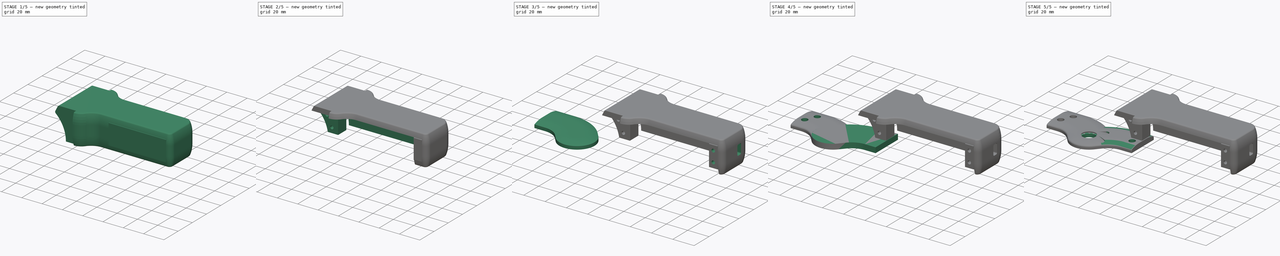
[diagram: build sequence overview — one tinted view per stage of 5, left to right]
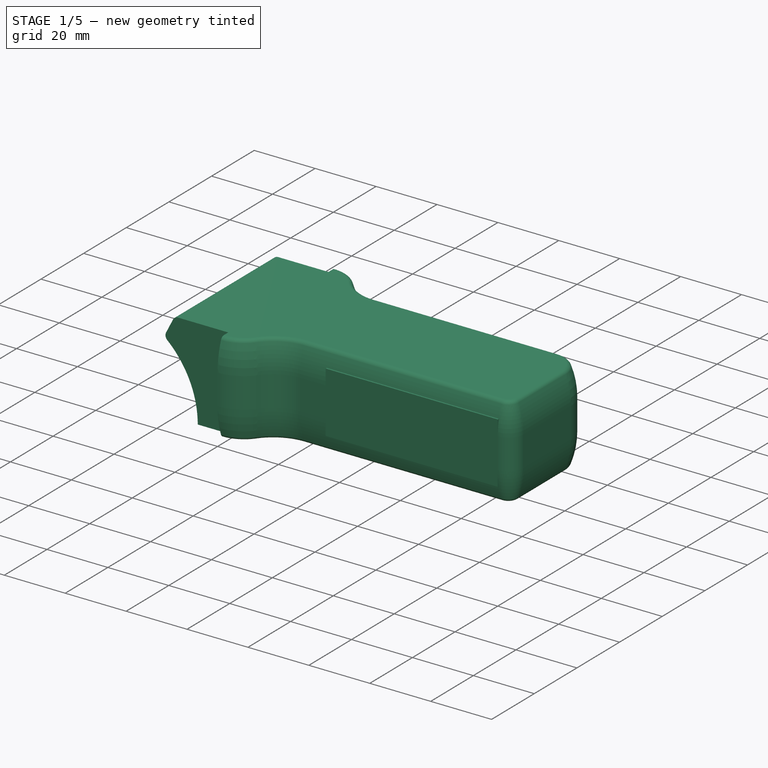
[diagram: stage 1 of 5 — iso view after this stage's code; geometry added in this stage tinted green]
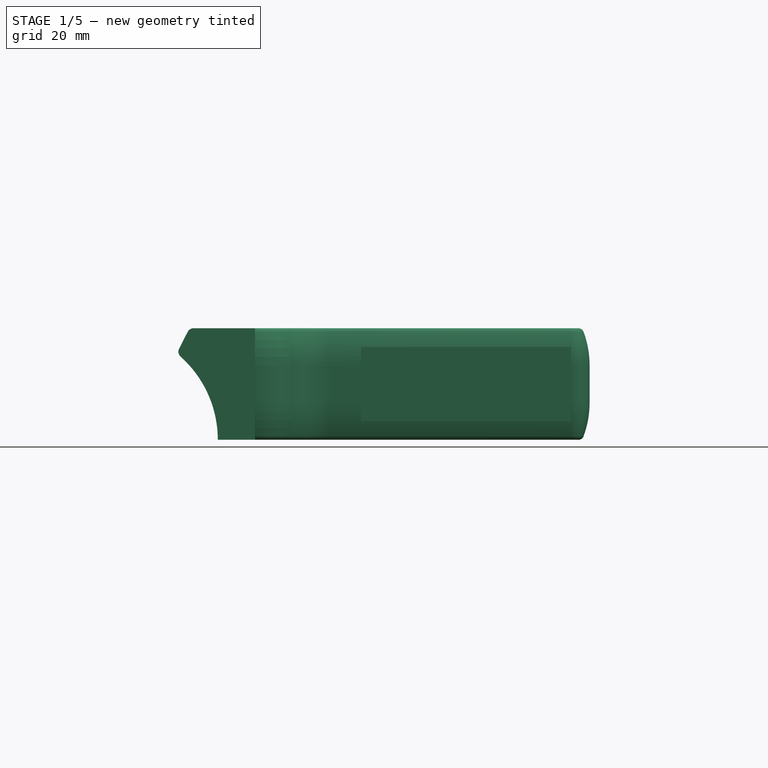
[diagram: stage 1 of 5 — front view after this stage's code; geometry added in this stage tinted green]
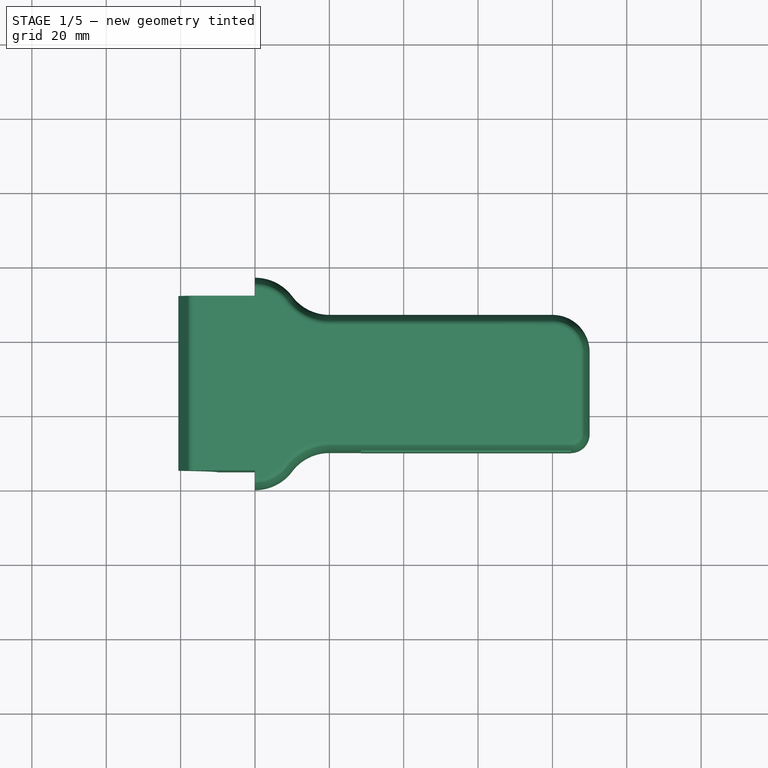
[diagram: stage 1 of 5 — top view after this stage's code; geometry added in this stage tinted green]
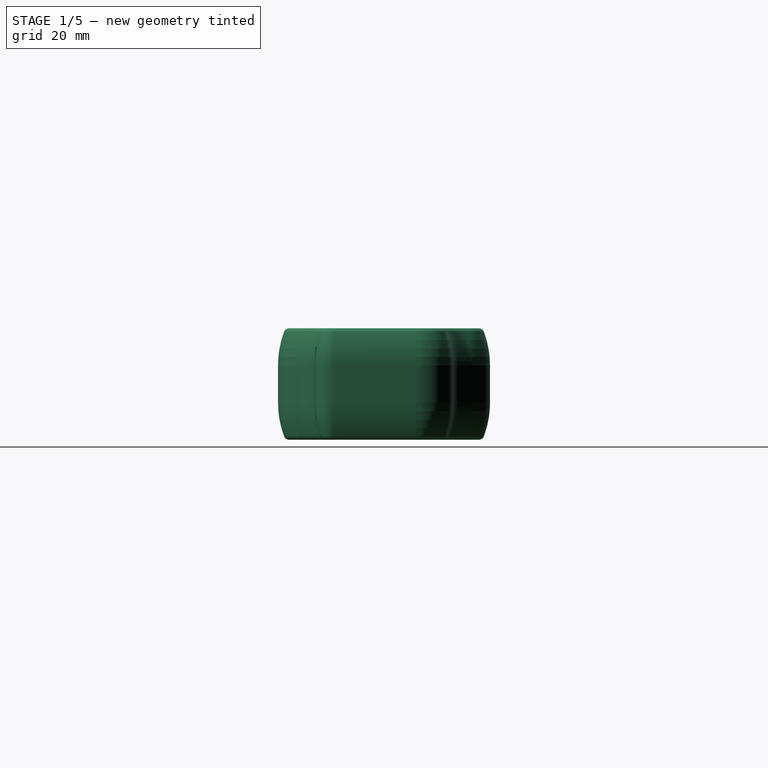
[diagram: stage 1 of 5 — right view after this stage's code; geometry added in this stage tinted green]
FCSTD DOCUMENT  (FreeCAD 0.18R4 (GitTag))
Label: Limb_Top_Shell
License: CreativeCommons Attribution-NonCommercial
LicenseURL: http://creativecommons.org/licenses/by-nc/4.0/
objects: Sketcher::SketchObject×29, PartDesign::Pocket×25, PartDesign::Fillet×11, PartDesign::Pad×4, PartDesign::SubtractivePipe×3, PartDesign::Body×3
note: 107 computed .brp shape members not serialized (recipe doc carries the construction recipe); baked Part::Feature solids carry a one-line shape summary decoded from their .brp

FEATURE [Sketcher::SketchObject] Sketch
  MapMode = 5
  Support = -> [XY_Plane]
  sketch-geometry (12):
    g0: LineSegment StartX=0 StartY=0 StartZ=0 EndX=0 EndY=57 EndZ=0
    g1: LineSegment StartX=0 StartY=57 StartZ=0 EndX=40 EndY=57 EndZ=0
    g2: ArcOfCircle CenterX=40 CenterY=44.5 CenterZ=0 NormalX=0 NormalY=0 NormalZ=1 AngleXU=0 Radius=12.5 StartAngle=0.643501 EndAngle=1.5708
    g3: ArcOfCircle CenterX=60 CenterY=59.5 CenterZ=0 NormalX=0 NormalY=0 NormalZ=1 AngleXU=0 Radius=12.5 StartAngle=3.78509 EndAngle=4.71239
    g4: LineSegment StartX=60 StartY=47 StartZ=0 EndX=120 EndY=47 EndZ=0
    g5: ArcOfCircle CenterX=120 CenterY=37 CenterZ=0 NormalX=0 NormalY=0 NormalZ=1 AngleXU=0 Radius=10 StartAngle=2e-16 EndAngle=1.5708
    g6: LineSegment StartX=130 StartY=37 StartZ=0 EndX=130 EndY=15 EndZ=0
    g7: ArcOfCircle CenterX=125 CenterY=15 CenterZ=0 NormalX=0 NormalY=0 NormalZ=1 AngleXU=0 Radius=5 StartAngle=4.71239 EndAngle=6.28319
    g8: LineSegment StartX=125 StartY=10 StartZ=0 EndX=60 EndY=10 EndZ=0
    g9: LineSegment StartX=40 StartY=0 StartZ=0 EndX=0 EndY=0 EndZ=0
    g10: ArcOfCircle CenterX=40 CenterY=12.5 CenterZ=0 NormalX=0 NormalY=0 NormalZ=1 AngleXU=0 Radius=12.5 StartAngle=4.71239 EndAngle=5.63968
    g11: ArcOfCircle CenterX=60 CenterY=-2.5 CenterZ=0 NormalX=0 NormalY=0 NormalZ=1 AngleXU=0 Radius=12.5 StartAngle=1.5708 EndAngle=2.49809
  constraints (31):
    c: Coincident(g-1,g0)
    c: PointOnObject(g0,g-2)
    c: Coincident(g0,g1)
    c: Horizontal(g1)
    c: Tangent(g1,g2) = 1.5708
    c: Tangent(g2,g3) = 1.5708
    c: Tangent(g3,g4) = -1.5708
    c: Tangent(g4,g5) = 1.5708
    c: Tangent(g5,g6) = 1.5708
    c: Tangent(g6,g7) = 1.5708
    c: Tangent(g7,g8) = 1.5708
    c: Coincident(g9,g0)
    c: Horizontal(g9)
    c: Horizontal(g4)
    c: Horizontal(g8)
    c: Vertical(g6)
    c: Tangent(g11,g8) = -1.5708
    c: Tangent(g11,g10) = 1.5708
    c: Radius(g7) = 5
    c: Radius(g5) = 10
    c: DistanceX(g1,g1) = 40
    c: DistanceX(g0,g6) = 130
    c: DistanceX(g1,g3) = 20
    c: Tangent(g10,g9) = 1.5708
    c: DistanceX(g9,g8) = 20
    c: DistanceX(g9,g9) = 40
    c: DistanceY(g0,g0) = 57
    c: DistanceY(g9,g8) = 10
    c: DistanceY(g3,g1) = 10
    c: DistanceX(g10,g8) = 10
    c: DistanceX(g2,g3) = 10
FEATURE [PartDesign::Pad] Pad  label="Baseplate"
  Length = 30
  Length2 = 100
  Profile = -> Sketch
  Type = 0
FEATURE [PartDesign::Pocket] Pocket  label="Servohorn Mount Pocket"
  BaseFeature = -> Pad
  Length = 5
  Length2 = 100
  Profile = -> Pad [Face12]
  Type = 0
FEATURE [PartDesign::Pocket] Pocket001  label="Ball Bearing Mount Pocket"
  BaseFeature = -> Pocket
  Length = 5
  Length2 = 100
  Profile = -> Pocket [Face3]
  Type = 0
FEATURE [Sketcher::SketchObject] Sketch001
  MapMode = 5
  Placement = pos=(40,0,0) rot=(0.57735,-0.57735,-0.57735;2.0944rad)
  Support = -> [Pocket001]
  sketch-geometry (6):
    g0: ArcOfCircle CenterX=-25.9999 CenterY=20 CenterZ=0 NormalX=0 NormalY=0 NormalZ=1 AngleXU=0 Radius=25.9999 StartAngle=6.28318 EndAngle=6.67798
    g1: LineSegment StartX=-2 StartY=30 StartZ=0 EndX=1 EndY=30 EndZ=0
    g2: LineSegment StartX=1 StartY=30 StartZ=0 EndX=1 EndY=0 EndZ=0
    g3: LineSegment StartX=1 StartY=0 StartZ=0 EndX=-2 EndY=2.39524e-11 EndZ=0
    g4: ArcOfCircle CenterX=-25.9999 CenterY=9.99999 CenterZ=0 NormalX=0 NormalY=0 NormalZ=1 AngleXU=0 Radius=25.9999 StartAngle=5.88839 EndAngle=6.28319
    g5: LineSegment StartX=-2.5011e-12 StartY=10 StartZ=0 EndX=-2.5011e-12 EndY=20 EndZ=0
  constraints (20):
    c: DistanceY(g0,g0) = 10
    c: DistanceX(g0,g-1) = 2
    c: Vertical(g0,g-1)
    c: Tangent(g0,g-2)
    c: DistanceY(g-1,g0) = 30
    c: Coincident(g0,g1)
    c: Coincident(g1,g2)
    c: PointOnObject(g2,g-1)
    c: Vertical(g2)
    c: Coincident(g2,g3)
    c: PointOnObject(g3,g-1)
    c: Coincident(g4,g3)
    c: Tangent(g4,g-2)
    c: Vertical(g3,g0)
    c: DistanceY(g-1,g4) = 10
    c: Coincident(g5,g4)
    c: Coincident(g5,g0)
    c: Vertical(g5)
    c: Horizontal(g1)
    c: DistanceX(g1,g1) = 3
FEATURE [PartDesign::SubtractivePipe] SubtractivePipe  label="Smooth Beveled Surfaces"
  AuxilleryCurvelinear = true
  AuxillerySpineTangent = false
  BaseFeature = -> Pocket001
  Binormal = (0,0,0)
  Mode = 0
  Profile = -> Sketch001
  Spine = -> Pocket001 [Edge21,Edge22,Edge23,Edge24,Edge25,Edge26,Edge27,Edge28,Edge29]
  SpineTangent = false
  Transformation = 0
  Transition = 0
FEATURE [PartDesign::Fillet] Fillet  label="Smooth Edges"
  Base = -> SubtractivePipe [Edge20,Edge5]
  BaseFeature = -> SubtractivePipe
  Radius = 1.5
FEATURE [Sketcher::SketchObject] Sketch134
  MapMode = 5
  Placement = pos=(0,5,0) rot=(1,0,0;1.5708rad)
  Support = -> [Fillet]
  sketch-geometry (1):
    g0: Circle CenterX=0 CenterY=0 CenterZ=0 NormalX=0 NormalY=0 NormalZ=1 AngleXU=0 Radius=30
  constraints (2):
    c: Coincident(g0,g-1)
    c: Radius(g0) = 30
FEATURE [PartDesign::Pocket] Pocket039  label="Joint Pan"
  BaseFeature = -> Fillet
  Length = 47
  Length2 = 100
  Profile = -> Sketch134
  Type = 0
FEATURE [Sketcher::SketchObject] Sketch137
  ExternalGeometry = -> [Pocket039]
  MapMode = 5
  Placement = pos=(0,5,0) rot=(1,0,0;1.5708rad)
  Support = -> [Pocket039]
  sketch-geometry (7):
    g0: ArcOfCircle CenterX=23.5 CenterY=28.2018 CenterZ=0 NormalX=0 NormalY=0 NormalZ=1 AngleXU=0 Radius=1.79818 StartAngle=1.57079 EndAngle=2.66896
    g1: LineSegment StartX=21.8989 StartY=29.0204 StartZ=0 EndX=19.5977 EndY=24.5195 EndZ=0
    g2: ArcOfCircle CenterX=21.1988 CenterY=23.701 CenterZ=0 NormalX=0 NormalY=0 NormalZ=1 AngleXU=0 Radius=1.79818 StartAngle=2.66896 EndAngle=3.98266
    g3: Circle [constr] CenterX=0 CenterY=0 CenterZ=0 NormalX=0 NormalY=0 NormalZ=1 AngleXU=0 Radius=30
    g4: LineSegment StartX=23.5 StartY=30 StartZ=0 EndX=0 EndY=30 EndZ=0
    g5: LineSegment StartX=0 StartY=30 StartZ=0 EndX=0 EndY=22.3607 EndZ=0
    g6: LineSegment StartX=0 StartY=22.3607 StartZ=0 EndX=20 EndY=22.3607 EndZ=0
  constraints (19):
    c: Coincident(g3,g-1)
    c: Radius(g3) = 30
    c: Coincident(g4,g0)
    c: PointOnObject(g4,g3)
    c: Horizontal(g4)
    c: Tangent(g4,g0)
    c: Coincident(g5,g4)
    c: Vertical(g5)
    c: Tangent(g2,g3) = 1.5708
    c: Tangent(g2,g1) = -1.5708
    c: Tangent(g1,g0) = -1.5708
    c: DistanceX(g4,g4) = 23.5
    c: PointOnObject(g4,g-2)
    c: DistanceX(g5,g2) = 20
    c: Equal(g0,g2)
    c: Coincident(g6,g5)
    c: Coincident(g6,g2)
    c: Horizontal(g6)
    c: Horizontal(g-3,g0)
FEATURE [PartDesign::Pocket] Pocket041  label="Shortened Angled Top"
  BaseFeature = -> Pocket039
  Length = 47
  Length2 = 100
  Profile = -> Sketch137
  Type = 0
FEATURE [Sketcher::SketchObject] Sketch138
  MapMode = 5
  Placement = pos=(0,0,0) rot=(1,0,0;1.5708rad)
  Support = -> [XZ_Plane]
  sketch-geometry (4):
    g0: LineSegment StartX=68.5 StartY=25 StartZ=0 EndX=125 EndY=25 EndZ=0
    g1: LineSegment StartX=125 StartY=25 StartZ=0 EndX=125 EndY=5 EndZ=0
    g2: LineSegment StartX=125 StartY=5 StartZ=0 EndX=68.5 EndY=5 EndZ=0
    g3: LineSegment StartX=68.5 StartY=5 StartZ=0 EndX=68.5 EndY=25 EndZ=0
  constraints (12):
    c: Coincident(g0,g1)
    c: Coincident(g1,g2)
    c: Coincident(g2,g3)
    c: Coincident(g3,g0)
    c: Horizontal(g0)
    c: Horizontal(g2)
    c: Vertical(g1)
    c: Vertical(g3)
    c: DistanceX(g0,g0) = 56.5
    c: DistanceY(g3,g3) = 20
    c: DistanceY(g-1,g2) = 5
    c: DistanceX(g-1,g0) = 68.5
FEATURE [PartDesign::Pocket] Pocket042  label="Servoplacement Helper Pocket"
  BaseFeature = -> Pocket041
  Length = 15
  Length2 = 100
  Profile = -> Sketch138
  Type = 0
FEATURE [PartDesign::Pad] Pad001  label="Servoplacement Helper Pad"
  BaseFeature = -> Pocket042
  Length = 5
  Length2 = 100
  Profile = -> Pocket042 [Face60]
  Type = 0
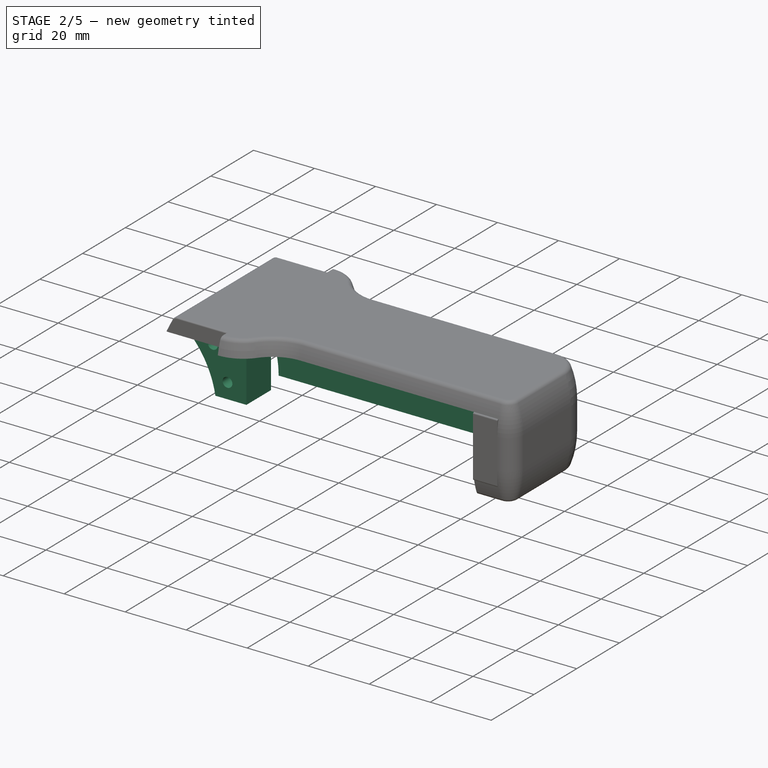
[diagram: stage 2 of 5 — iso view after this stage's code; geometry added in this stage tinted green]
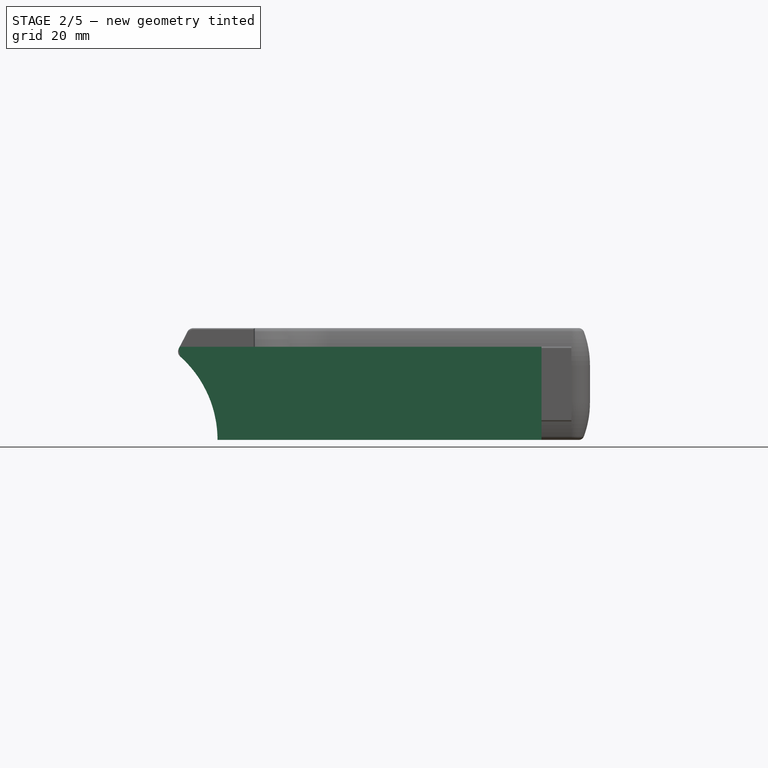
[diagram: stage 2 of 5 — front view after this stage's code; geometry added in this stage tinted green]
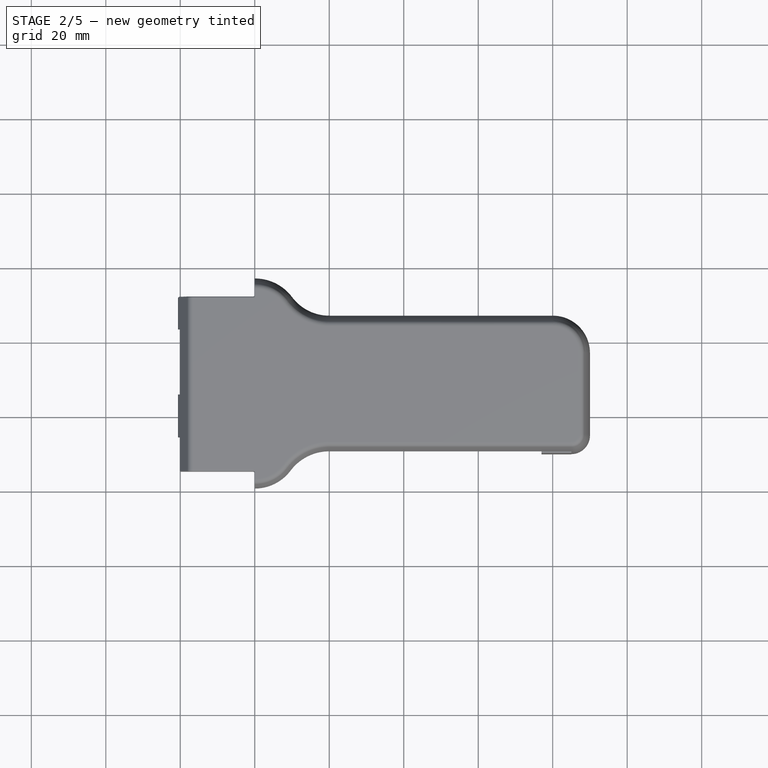
[diagram: stage 2 of 5 — top view after this stage's code; geometry added in this stage tinted green]
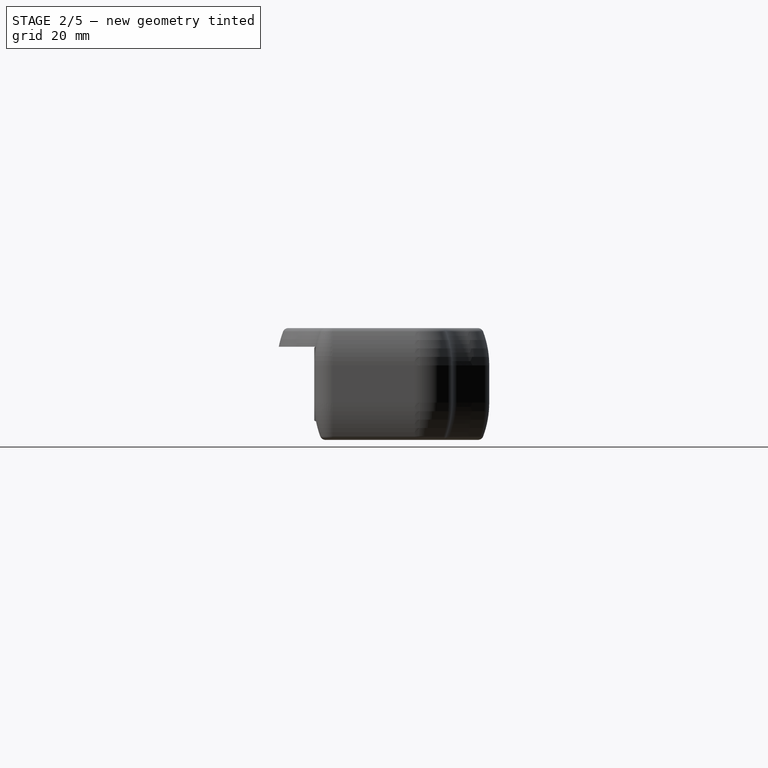
[diagram: stage 2 of 5 — right view after this stage's code; geometry added in this stage tinted green]
FEATURE [PartDesign::Fillet] Fillet001  label="Servoplacement Smooth Edges"
  Base = -> Pad001 [Edge121,Edge125]
  BaseFeature = -> Pad001
  Radius = 0.4
FEATURE [Sketcher::SketchObject] Sketch139
  MapMode = 5
  Placement = pos=(0,10,-2.2e-15) rot=(1,0,0;1.5708rad)
  Support = -> [Fillet001]
  sketch-geometry (4):
    g0: LineSegment StartX=76.5 StartY=25 StartZ=0 EndX=117 EndY=25 EndZ=0
    g1: LineSegment StartX=117 StartY=25 StartZ=0 EndX=117 EndY=5 EndZ=0
    g2: LineSegment StartX=117 StartY=5 StartZ=0 EndX=76.5 EndY=5 EndZ=0
    g3: LineSegment StartX=76.5 StartY=5 StartZ=0 EndX=76.5 EndY=25 EndZ=0
  constraints (12):
    c: Coincident(g0,g1)
    c: Coincident(g1,g2)
    c: Coincident(g2,g3)
    c: Coincident(g3,g0)
    c: Horizontal(g0)
    c: Horizontal(g2)
    c: Vertical(g1)
    c: Vertical(g3)
    c: DistanceX(g0,g0) = 40.5
    c: DistanceY(g3,g3) = 20
    c: DistanceY(g-1,g2) = 5
    c: DistanceX(g-1,g2) = 76.5
FEATURE [PartDesign::Pocket] Pocket043  label="Servo Pocket"
  BaseFeature = -> Fillet001
  Length = 30
  Length2 = 100
  Profile = -> Sketch139
  Type = 0
FEATURE [PartDesign::Fillet] Fillet002  label="Smooth Mount Edges"
  Base = -> Pocket043 [Edge147,Edge146,Edge141,Edge152]
  BaseFeature = -> Pocket043
  Radius = 0.4
FEATURE [PartDesign::Body] Body002  label="Limb_Ball_Bearing_Mount"
  Group = -> [Sketch146,Pad003,Sketch147,SubtractivePipe002,Fillet006,Sketch148,Pocket047,Sketch149,Pocket048,Sketch145,Pocket046,Sketch144,Pocket049,Fillet007,Fillet008]
  Origin = -> Origin002
  Placement = pos=(6e-15,52,1.2e-14) rot=(0,0.707107,0.707107;3.14159rad)
  Tip = -> Fillet008
FEATURE [Sketcher::SketchObject] Sketch150
  MapMode = 5
  Placement = pos=(0,0,0) rot=(1,0,0;3.14159rad)
  Support = -> [Fillet002]
  sketch-geometry (11):
    g0: LineSegment StartX=0 StartY=-43.25 StartZ=0 EndX=120.25 EndY=-43.25 EndZ=0
    g1: ArcOfCircle CenterX=120.25 CenterY=-38.25 CenterZ=0 NormalX=0 NormalY=0 NormalZ=1 AngleXU=0 Radius=5 StartAngle=4.71239 EndAngle=6.28319
    g2: LineSegment StartX=125.25 StartY=-38.25 StartZ=0 EndX=125.25 EndY=-14.75 EndZ=0
    g3: LineSegment StartX=125.25 StartY=-14.75 StartZ=0 EndX=117 EndY=-14.75 EndZ=0
    g4: LineSegment StartX=117 StartY=-14.75 StartZ=0 EndX=117 EndY=0 EndZ=0
    g5: LineSegment StartX=117 StartY=0 StartZ=0 EndX=0 EndY=0 EndZ=0
    g6: LineSegment StartX=0 StartY=0 StartZ=0 EndX=0 EndY=-14.25 EndZ=0
    g7: LineSegment StartX=0 StartY=-14.25 StartZ=0 EndX=39.75 EndY=-14.25 EndZ=0
    g8: LineSegment StartX=39.75 StartY=-14.25 StartZ=0 EndX=39.75 EndY=-25.75 EndZ=0
    g9: LineSegment StartX=39.75 StartY=-25.75 StartZ=0 EndX=0 EndY=-25.75 EndZ=0
    g10: LineSegment StartX=0 StartY=-25.75 StartZ=0 EndX=0 EndY=-43.25 EndZ=0
  constraints (30):
    c: PointOnObject(g0,g-2)
    c: Horizontal(g0)
    c: Tangent(g0,g1) = -1.5708
    c: Tangent(g1,g2) = -1.5708
    c: Coincident(g2,g3)
    c: Coincident(g3,g4)
    c: Coincident(g4,g5)
    c: Coincident(g5,g-1)
    c: Coincident(g5,g6)
    c: Coincident(g10,g0)
    c: Horizontal(g3)
    c: Vertical(g4)
    c: Vertical(g2)
    c: Horizontal(g5)
    c: DistanceX(g5,g2) = 125.25
    c: Radius(g1) = 5
    c: DistanceY(g4,g4) = 14.75
    c: DistanceX(g3,g3) = 8.25
    c: DistanceY(g0,g4) = 43.25
    c: Horizontal(g7)
    c: Coincident(g7,g8)
    c: Vertical(g8)
    c: Coincident(g8,g9)
    c: Horizontal(g9)
    c: Coincident(g6,g7)
    c: Tangent(g6,g10)
    c: DistanceY(g8,g8) = 11.5
    c: DistanceX(g7,g7) = 39.75
    c: DistanceY(g6,g5) = 14.25
    c: Coincident(g9,g10)
FEATURE [PartDesign::Pocket] Pocket050  label="Bottom Removal and Interlock"
  BaseFeature = -> Fillet002
  Length = 25
  Length2 = 100
  Profile = -> Sketch150
  Type = 0
FEATURE [Sketcher::SketchObject] Sketch151
  MapMode = 5
  Placement = pos=(0,0,0) rot=(1,0,0;3.14159rad)
  Support = -> [Pocket050]
  sketch-geometry (4):
    g0: LineSegment StartX=0 StartY=-26 StartZ=0 EndX=40 EndY=-26 EndZ=0
    g1: LineSegment StartX=40 StartY=-26 StartZ=0 EndX=40 EndY=-14 EndZ=0
    g2: LineSegment StartX=40 StartY=-14 StartZ=0 EndX=0 EndY=-14 EndZ=0
    g3: LineSegment StartX=0 StartY=-14 StartZ=0 EndX=0 EndY=-26 EndZ=0
  constraints (12):
    c: Coincident(g0,g1)
    c: Coincident(g1,g2)
    c: Coincident(g2,g3)
    c: Coincident(g3,g0)
    c: Horizontal(g0)
    c: Horizontal(g2)
    c: Vertical(g1)
    c: Vertical(g3)
    c: PointOnObject(g0,g-2)
    c: DistanceY(g1,g1) = 12
    c: DistanceY(g2,g-1) = 14
    c: DistanceX(g0,g0) = 40
FEATURE [PartDesign::Pocket] Pocket051  label="Shorten Interlock"
  BaseFeature = -> Pocket050
  Length = 5
  Length2 = 100
  Profile = -> Sketch151
  Type = 0
FEATURE [Sketcher::SketchObject] Sketch152
  MapMode = 5
  Placement = pos=(0,52,0) rot=(0,0.707107,0.707107;3.14159rad)
  Support = -> [Pocket051]
  sketch-geometry (3):
    g0: Circle [constr] CenterX=0 CenterY=0 CenterZ=0 NormalX=0 NormalY=0 NormalZ=1 AngleXU=0 Radius=35
    g1: Circle CenterX=-28.7228 CenterY=20 CenterZ=0 NormalX=0 NormalY=0 NormalZ=1 AngleXU=0 Radius=1.6
    g2: Circle CenterX=-33.541 CenterY=10 CenterZ=0 NormalX=0 NormalY=0 NormalZ=1 AngleXU=0 Radius=1.6
  constraints (8):
    c: Coincident(g0,g-1)
    c: Radius(g0) = 35
    c: PointOnObject(g1,g0)
    c: PointOnObject(g2,g0)
    c: Equal(g2,g1)
    c: Radius(g1) = 1.6
    c: DistanceY(g2,g1) = 10
    c: DistanceY(g-1,g2) = 10
FEATURE [PartDesign::Pocket] Pocket052  label="Screwholes Ball Bearing Mount (Interlock)"
  BaseFeature = -> Pocket051
  Length = 22
  Length2 = 100
  Profile = -> Sketch152
  Type = 0
FEATURE [Sketcher::SketchObject] Sketch153
  MapMode = 5
  Placement = pos=(0,14.25,0) rot=(1,0,0;1.5708rad)
  Support = -> [Pocket052]
  sketch-geometry (3):
    g0: Circle [constr] CenterX=0 CenterY=0 CenterZ=0 NormalX=0 NormalY=0 NormalZ=1 AngleXU=0 Radius=35
    g1: Circle CenterX=28.7228 CenterY=20 CenterZ=0 NormalX=0 NormalY=0 NormalZ=1 AngleXU=0 Radius=1.6
    g2: Circle CenterX=33.541 CenterY=10 CenterZ=0 NormalX=0 NormalY=0 NormalZ=1 AngleXU=0 Radius=1.6
  constraints (8):
    c: Coincident(g0,g-1)
    c: PointOnObject(g1,g0)
    c: PointOnObject(g2,g0)
    c: Equal(g2,g1)
    c: Radius(g1) = 1.6
    c: DistanceY(g2,g1) = 10
    c: DistanceY(g-1,g2) = 10
    c: Radius(g0) = 35
FEATURE [PartDesign::Pocket] Pocket053  label="Screwholes Servohorn Mount"
  BaseFeature = -> Pocket052
  Length = 10
  Length2 = 100
  Profile = -> Sketch153
  Type = 0
FEATURE [Sketcher::SketchObject] Sketch154
  MapMode = 5
  Placement = pos=(0,0,0) rot=(0.57735,0.57735,0.57735;2.0944rad)
  Support = -> [YZ_Plane]
  sketch-geometry (4):
    g0: LineSegment StartX=18.5 StartY=7.1 StartZ=0 EndX=21.5 EndY=7.1 EndZ=0
    g1: LineSegment StartX=21.5 StartY=7.1 StartZ=0 EndX=21.5 EndY=12.9 EndZ=0
    g2: LineSegment StartX=21.5 StartY=12.9 StartZ=0 EndX=18.5 EndY=12.9 EndZ=0
    g3: LineSegment StartX=18.5 StartY=12.9 StartZ=0 EndX=18.5 EndY=7.1 EndZ=0
  constraints (12):
    c: Coincident(g0,g1)
    c: Coincident(g1,g2)
    c: Coincident(g2,g3)
    c: Coincident(g3,g0)
    c: Horizontal(g0)
    c: Horizontal(g2)
    c: Vertical(g1)
    c: Vertical(g3)
    c: DistanceX(g2,g2) = 3
    c: DistanceY(g1,g1) = 5.8
    c: DistanceY(g-1,g0) = 7.1
    c: DistanceX(g-1,g0) = 21.5
FEATURE [PartDesign::Pocket] Pocket054  label="Bottom Nuthole Ball Bearing Mount (Interlock)"
  BaseFeature = -> Pocket053
  Length = 38
  Length2 = 100
  Profile = -> Sketch154
  Reversed = true
  Type = 0
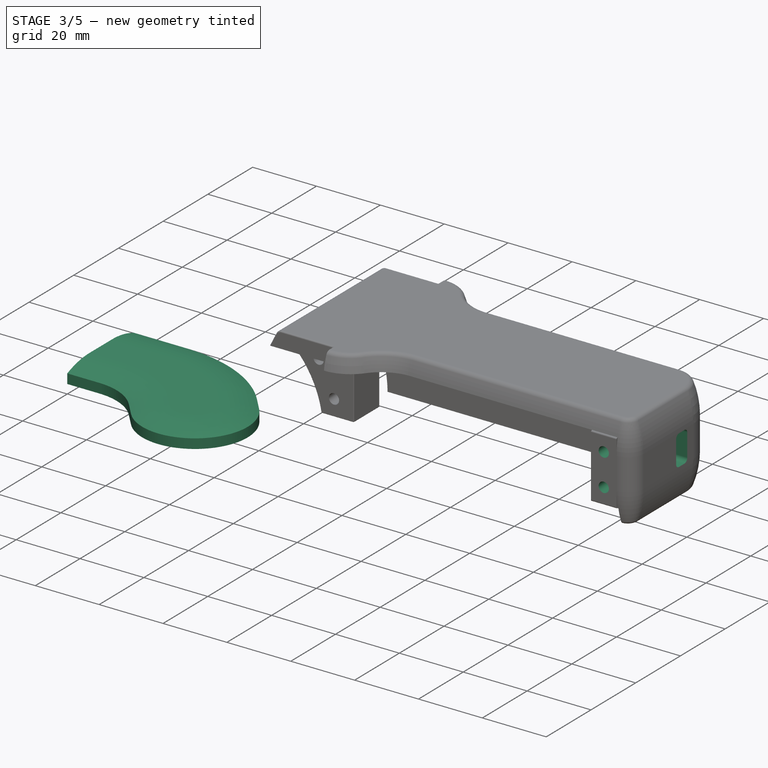
[diagram: stage 3 of 5 — iso view after this stage's code; geometry added in this stage tinted green]
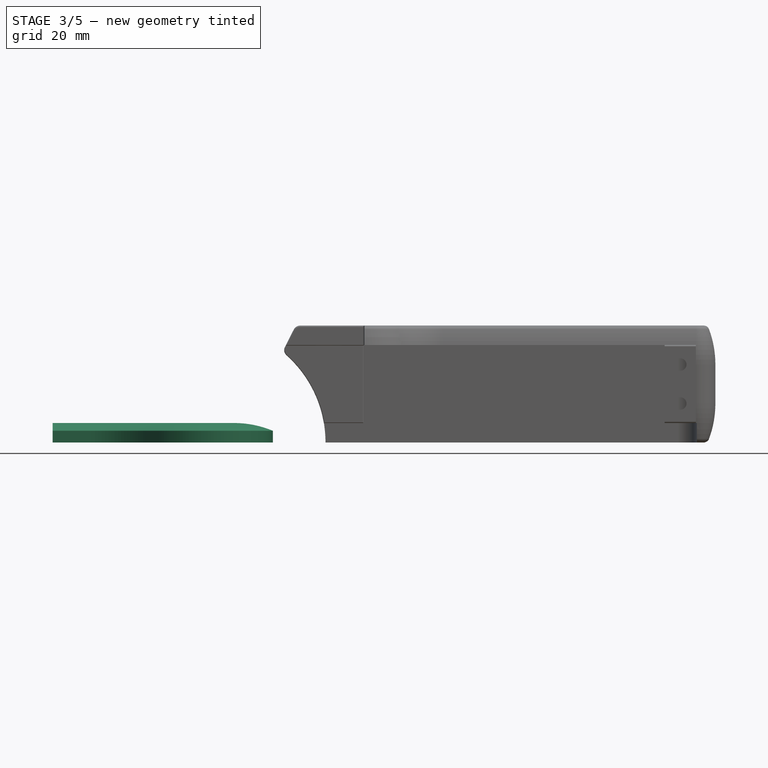
[diagram: stage 3 of 5 — front view after this stage's code; geometry added in this stage tinted green]
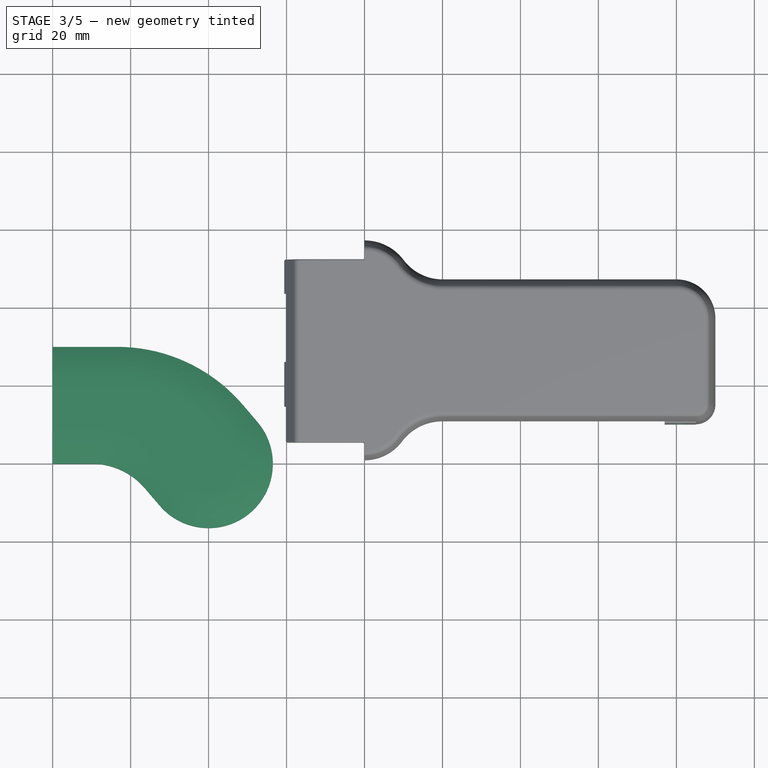
[diagram: stage 3 of 5 — top view after this stage's code; geometry added in this stage tinted green]
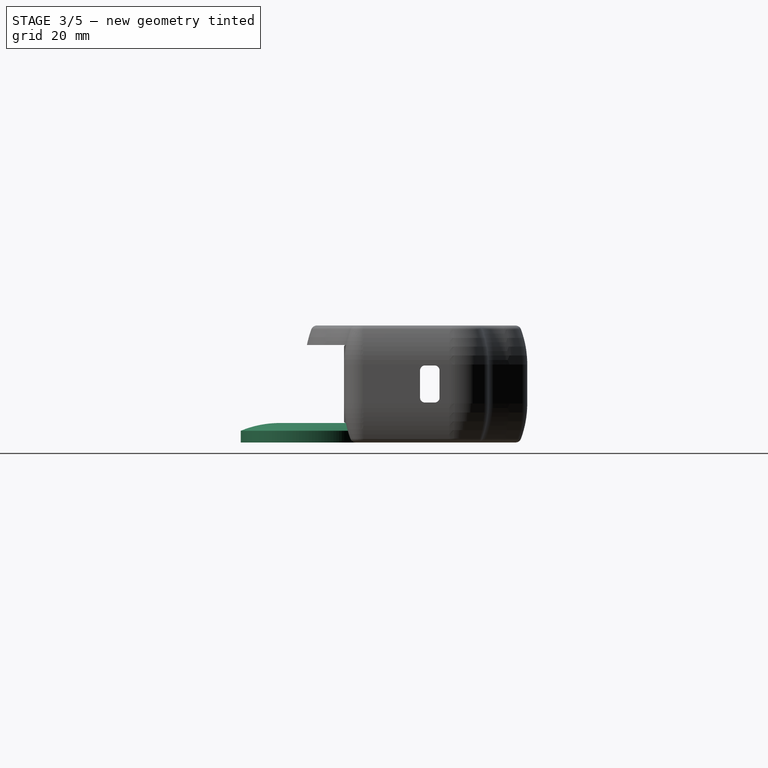
[diagram: stage 3 of 5 — right view after this stage's code; geometry added in this stage tinted green]
FEATURE [PartDesign::Body] Body001  label="Limb_Servohorn_Mount"
  Group = -> [Sketch140,Pad002,Sketch142,SubtractivePipe001,Fillet005,Sketch133,Pocket044,Sketch141,Pocket045,Sketch135,Pocket002,Fillet004,Sketch136,Pocket003,Sketch143,Pocket004,Fillet003]
  Origin = -> Origin001
  Placement = pos=(0,5,1e-15) rot=(1,0,0;1.5708rad)
  Tip = -> Fillet003
FEATURE [Sketcher::SketchObject] Sketch146
  MapMode = 5
  Support = -> [XY_Plane002]
  sketch-geometry (9):
    g0: ArcOfCircle CenterX=0 CenterY=0 CenterZ=0 NormalX=0 NormalY=0 NormalZ=1 AngleXU=0 Radius=16.5 StartAngle=3.84757 EndAngle=6.98917
    g1: LineSegment StartX=-12.5561 StartY=-10.7049 StartZ=0 EndX=-16.2866 EndY=-6.32927 EndZ=0
    g2: LineSegment StartX=8.82561 StartY=15.0805 StartZ=0 EndX=12.5561 EndY=10.7049 EndZ=0
    g3: LineSegment [constr] StartX=-16.2866 StartY=-6.32927 StartZ=0 EndX=8.82561 EndY=15.0805 EndZ=0
    g4: ArcOfCircle CenterX=-30 CenterY=-18.0208 CenterZ=0 NormalX=0 NormalY=0 NormalZ=1 AngleXU=0 Radius=18.0208 StartAngle=0.705981 EndAngle=1.5708
    g5: ArcOfCircle CenterX=-23.5 CenterY=-12.4792 CenterZ=0 NormalX=0 NormalY=0 NormalZ=1 AngleXU=0 Radius=42.4792 StartAngle=0.705981 EndAngle=1.5708
    g6: LineSegment StartX=-30 StartY=0 StartZ=0 EndX=-40 EndY=0 EndZ=0
    g7: LineSegment StartX=-40 StartY=0 StartZ=0 EndX=-40 EndY=30 EndZ=0
    g8: LineSegment StartX=-40 StartY=30 StartZ=0 EndX=-23.5 EndY=30 EndZ=0
  constraints (22):
    c: Coincident(g0,g-1)
    c: Tangent(g0,g1) = 1.5708
    c: Coincident(g3,g2) = -1.5708
    c: Parallel(g2,g1)
    c: Radius(g0) = 16.5
    c: Tangent(g2,g0) = 1.5708
    c: Coincident(g3,g1)
    c: Perpendicular(g1,g3)
    c: Tangent(g5,g2) = 1.5708
    c: Tangent(g4,g1) = -1.5708
    c: Horizontal(g6)
    c: Coincident(g7,g6)
    c: Vertical(g7)
    c: Coincident(g8,g7)
    c: Horizontal(g8)
    c: PointOnObject(g6,g-1)
    c: Tangent(g6,g4) = -1.5708
    c: DistanceY(g7,g7) = 30
    c: DistanceX(g6,g0) = 40
    c: DistanceX(g4,g0) = 30
    c: DistanceX(g8,g8) = 16.5
    c: Tangent(g8,g5) = 1.5708
FEATURE [PartDesign::Pad] Pad003  label="Baseplate002"
  Length = 5
  Length2 = 100
  Profile = -> Sketch146
  Type = 0
FEATURE [Sketcher::SketchObject] Sketch147
  MapMode = 5
  Placement = pos=(-40,0,0) rot=(0.57735,-0.57735,-0.57735;2.0944rad)
  Support = -> [Pad003]
  sketch-geometry (4):
    g0: ArcOfCircle CenterX=-10 CenterY=-21 CenterZ=0 NormalX=0 NormalY=0 NormalZ=1 AngleXU=0 Radius=26 StartAngle=1.17601 EndAngle=1.5708
    g1: LineSegment StartX=-10 StartY=5 StartZ=0 EndX=-10 EndY=6 EndZ=0
    g2: LineSegment StartX=-10 StartY=6 StartZ=0 EndX=-3.6e-15 EndY=6 EndZ=0
    g3: LineSegment StartX=-3.6e-15 StartY=6 StartZ=0 EndX=-3.6e-15 EndY=3 EndZ=0
  constraints (13):
    c: Coincident(g1,g0)
    c: Vertical(g1)
    c: Horizontal(g2)
    c: Coincident(g3,g2)
    c: Vertical(g3)
    c: Coincident(g0,g3)
    c: Coincident(g1,g2)
    c: DistanceY(g1,g1) = 1
    c: DistanceY(g3,g3) = 3
    c: DistanceX(g2,g2) = 10
    c: DistanceY(g-1,g0) = 5
    c: Perpendicular(g0,g1)
    c: Vertical(g0,g-1)
FEATURE [PartDesign::SubtractivePipe] SubtractivePipe002  label="Smooth Surfaces001"
  AuxilleryCurvelinear = true
  AuxillerySpineTangent = false
  BaseFeature = -> Pad003
  Binormal = (0,0,0)
  Mode = 0
  Profile = -> Sketch147
  Spine = -> Pad003 [Edge19,Edge22,Edge24,Edge4,Edge7,Edge10,Edge13]
  SpineTangent = false
  Transformation = 0
  Transition = 0
FEATURE [Sketcher::SketchObject] Sketch155
  MapMode = 5
  Placement = pos=(0,0,0) rot=(0.57735,0.57735,0.57735;2.0944rad)
  Support = -> [YZ_Plane]
  sketch-geometry (4):
    g0: LineSegment StartX=18.5 StartY=17.1 StartZ=0 EndX=21.5 EndY=17.1 EndZ=0
    g1: LineSegment StartX=21.5 StartY=17.1 StartZ=0 EndX=21.5 EndY=22.9 EndZ=0
    g2: LineSegment StartX=21.5 StartY=22.9 StartZ=0 EndX=18.5 EndY=22.9 EndZ=0
    g3: LineSegment StartX=18.5 StartY=22.9 StartZ=0 EndX=18.5 EndY=17.1 EndZ=0
  constraints (12):
    c: Coincident(g0,g1)
    c: Coincident(g1,g2)
    c: Coincident(g2,g3)
    c: Coincident(g3,g0)
    c: Horizontal(g0)
    c: Horizontal(g2)
    c: Vertical(g1)
    c: Vertical(g3)
    c: DistanceX(g2,g2) = 3
    c: DistanceY(g1,g1) = 5.8
    c: DistanceX(g-1,g0) = 21.5
    c: DistanceY(g-1,g0) = 17.1
FEATURE [PartDesign::Pocket] Pocket055  label="Top Nuthole Ball Bearing Mount (Interlock)"
  BaseFeature = -> Pocket054
  Length = 33
  Length2 = 100
  Profile = -> Sketch155
  Reversed = true
  Type = 0
FEATURE [Sketcher::SketchObject] Sketch156
  MapMode = 5
  Placement = pos=(0,10,-2.2e-15) rot=(1,0,0;1.5708rad)
  Support = -> [Pocket055]
  sketch-geometry (2):
    g0: Circle CenterX=121 CenterY=20 CenterZ=0 NormalX=0 NormalY=0 NormalZ=1 AngleXU=0 Radius=1.6
    g1: Circle CenterX=121 CenterY=10 CenterZ=0 NormalX=0 NormalY=0 NormalZ=1 AngleXU=0 Radius=1.6
  constraints (6):
    c: Vertical(g1,g0)
    c: Equal(g0,g1)
    c: Radius(g0) = 1.6
    c: DistanceY(g1,g0) = 10
    c: DistanceX(g-1,g1) = 121
    c: DistanceY(g-1,g1) = 10
FEATURE [PartDesign::Pocket] Pocket056  label="Screwholes Servopocket"
  BaseFeature = -> Pocket055
  Length = 6
  Length2 = 100
  Profile = -> Sketch156
  Type = 0
FEATURE [Sketcher::SketchObject] Sketch157
  MapMode = 5
  Placement = pos=(0,0,25) rot=(1,0,0;3.14159rad)
  Support = -> [Pocket056]
  sketch-geometry (4):
    g0: LineSegment StartX=125 StartY=-26 StartZ=0 EndX=125 EndY=-34.5 EndZ=0
    g1: LineSegment StartX=125 StartY=-34.5 StartZ=0 EndX=30 EndY=-34.5 EndZ=0
    g2: LineSegment StartX=30 StartY=-26 StartZ=0 EndX=125 EndY=-26 EndZ=0
    g3: LineSegment StartX=30 StartY=-34.5 StartZ=0 EndX=30 EndY=-26 EndZ=0
  constraints (12):
    c: Coincident(g0,g1)
    c: Horizontal(g1)
    c: Vertical(g0)
    c: DistanceX(g-1,g0) = 125
    c: Coincident(g3,g2)
    c: Horizontal(g2)
    c: Vertical(g3)
    c: DistanceY(g3,g3) = 8.5
    c: DistanceY(g2,g-1) = 26
    c: DistanceX(g-1,g2) = 30
    c: Coincident(g3,g1)
    c: Coincident(g0,g2)
FEATURE [PartDesign::Pocket] Pocket057  label="Cableguide"
  BaseFeature = -> Pocket056
  Length = 2
  Length2 = 100
  Profile = -> Sketch157
  Type = 0
FEATURE [PartDesign::Fillet] Fillet009  label="Smooth Corners Cableguide"
  Base = -> Pocket057 [Edge183,Edge184,Edge188,Edge186]
  BaseFeature = -> Pocket057
  Radius = 1
FEATURE [PartDesign::Fillet] Fillet010  label="Smooth Interlock"
  Base = -> Fillet009 [Edge89,Edge85,Edge79,Edge86,Edge78,Edge148,Edge80,Edge87,Edge27,Edge23,Edge25,Edge84]
  BaseFeature = -> Fillet009
  Radius = 0.2
FEATURE [Sketcher::SketchObject] Sketch158
  MapMode = 5
  Placement = pos=(130,0,0) rot=(0.57735,0.57735,0.57735;2.0944rad)
  Support = -> [Fillet010]
  sketch-geometry (9):
    g0: LineSegment StartX=30.75 StartY=19.75 StartZ=0 EndX=33.25 EndY=19.75 EndZ=0
    g1: LineSegment StartX=34.5 StartY=18.5 StartZ=0 EndX=34.5 EndY=11.5 EndZ=0
    g2: LineSegment StartX=33.25 StartY=10.25 StartZ=0 EndX=30.75 EndY=10.25 EndZ=0
    g3: LineSegment StartX=29.5 StartY=11.5 StartZ=0 EndX=29.5 EndY=18.5 EndZ=0
    g4: ArcOfCircle CenterX=30.75 CenterY=18.5 CenterZ=0 NormalX=0 NormalY=0 NormalZ=1 AngleXU=0 Radius=1.25 StartAngle=1.5708 EndAngle=3.14159
    g5: ArcOfCircle CenterX=33.25 CenterY=18.5 CenterZ=0 NormalX=0 NormalY=0 NormalZ=1 AngleXU=0 Radius=1.25 StartAngle=1e-16 EndAngle=1.5708
    g6: ArcOfCircle CenterX=33.25 CenterY=11.5 CenterZ=0 NormalX=0 NormalY=0 NormalZ=1 AngleXU=0 Radius=1.25 StartAngle=4.71239 EndAngle=6.28319
    g7: ArcOfCircle CenterX=30.75 CenterY=11.5 CenterZ=0 NormalX=0 NormalY=0 NormalZ=1 AngleXU=0 Radius=1.25 StartAngle=3.14159 EndAngle=4.71239
    g8: Circle [constr] CenterX=32 CenterY=15 CenterZ=0 NormalX=0 NormalY=0 NormalZ=1 AngleXU=0 Radius=2.5
  constraints (23):
    c: Horizontal(g0)
    c: Horizontal(g2)
    c: Vertical(g1)
    c: Vertical(g3)
    c: Tangent(g3,g4) = 1.5708
    c: Tangent(g0,g4) = 1.5708
    c: Tangent(g0,g5) = 1.5708
    c: Tangent(g1,g5) = 1.5708
    c: Tangent(g1,g6) = 1.5708
    c: Tangent(g2,g6) = 1.5708
    c: Tangent(g3,g7) = 1.5708
    c: Tangent(g2,g7) = 1.5708
    c: DistanceY(g2,g0) = 9.5
    c: DistanceX(g3,g1) = 5
    c: Tangent(g8,g3)
    c: Tangent(g8,g1)
    c: Equal(g5,g4)
    c: Equal(g4,g7)
    c: Equal(g7,g6)
    c: Radius(g5) = 1.25
    c: DistanceY(g8,g0) = 4.75
    c: DistanceX(g-1,g8) = 32
    c: DistanceY(g-1,g8) = 15
FEATURE [PartDesign::Pocket] Pocket058  label="Servocable"
  BaseFeature = -> Fillet010
  Length = 5
  Length2 = 100
  Profile = -> Sketch158
  Type = 0
FEATURE [Sketcher::SketchObject] Sketch159
  MapMode = 5
  Placement = pos=(0,0,0) rot=(1,0,0;3.14159rad)
  Support = -> [Pocket058]
  sketch-geometry (4):
    g0: LineSegment StartX=117 StartY=-15 StartZ=0 EndX=125.25 EndY=-15 EndZ=0
    g1: LineSegment StartX=125.25 StartY=-15 StartZ=0 EndX=125.25 EndY=-10 EndZ=0
    g2: LineSegment StartX=125.25 StartY=-10 StartZ=0 EndX=117 EndY=-10 EndZ=0
    g3: LineSegment StartX=117 StartY=-10 StartZ=0 EndX=117 EndY=-15 EndZ=0
  constraints (12):
    c: Coincident(g0,g1)
    c: Coincident(g1,g2)
    c: Coincident(g2,g3)
    c: Coincident(g3,g0)
    c: Horizontal(g0)
    c: Horizontal(g2)
    c: Vertical(g1)
    c: Vertical(g3)
    c: DistanceX(g2,g2) = 8.25
    c: DistanceY(g3,g3) = 5
    c: DistanceY(g2,g-1) = 10
    c: DistanceX(g-1,g2) = 117
FEATURE [PartDesign::Pocket] Pocket059  label="Servopocket Interlock"
  BaseFeature = -> Pocket058
  Length = 5
  Length2 = 100
  Profile = -> Sketch159
  Type = 0
FEATURE [PartDesign::Body] Body  label="Limb_Top_Shell"
  Group = -> [Sketch,Pad,Pocket,Pocket001,Sketch001,SubtractivePipe,Fillet,Sketch134,Pocket039,Sketch137,Pocket041,Sketch138,Pocket042,Pad001,Fillet001,Sketch139,Pocket043,Fillet002,Sketch150,Pocket050,Sketch151,Pocket051,Sketch152,Pocket052,Sketch153,Pocket053,Sketch154,Pocket054,Sketch155,Pocket055,Sketch156,Pocket056,Sketch157,Pocket057,Fillet009,Fillet010,Sketch158,Pocket058,Sketch159,Pocket059]
  Origin = -> Origin
  Placement = pos=(0,0,0) rot=(1,0,0;3.14159rad)
  Tip = -> Pocket059
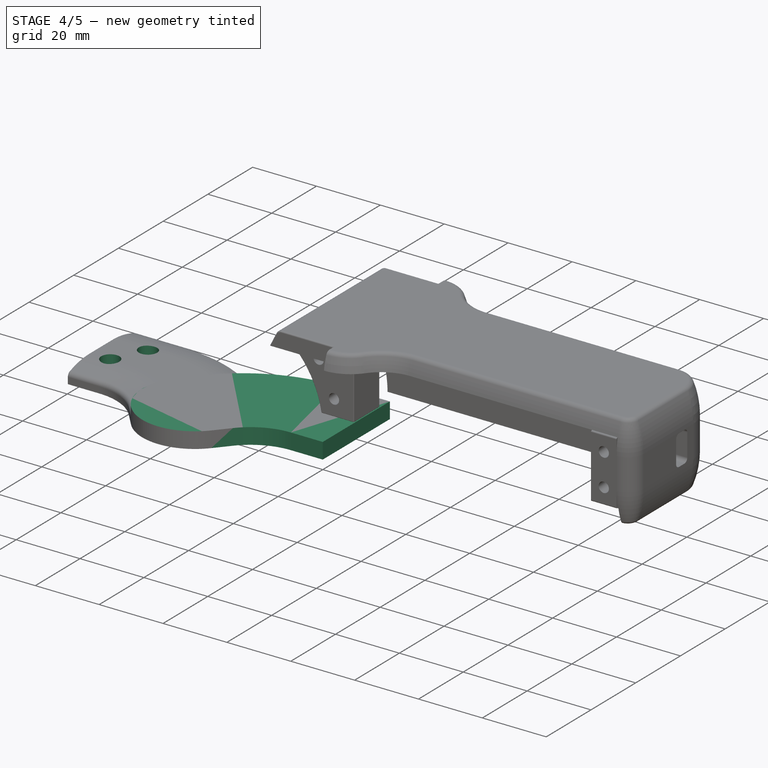
[diagram: stage 4 of 5 — iso view after this stage's code; geometry added in this stage tinted green]
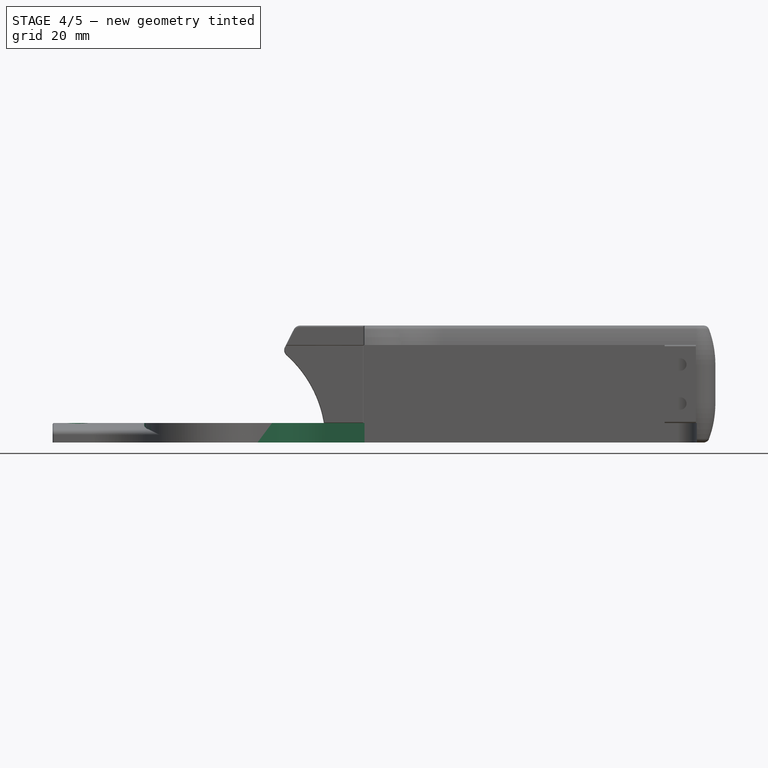
[diagram: stage 4 of 5 — front view after this stage's code; geometry added in this stage tinted green]
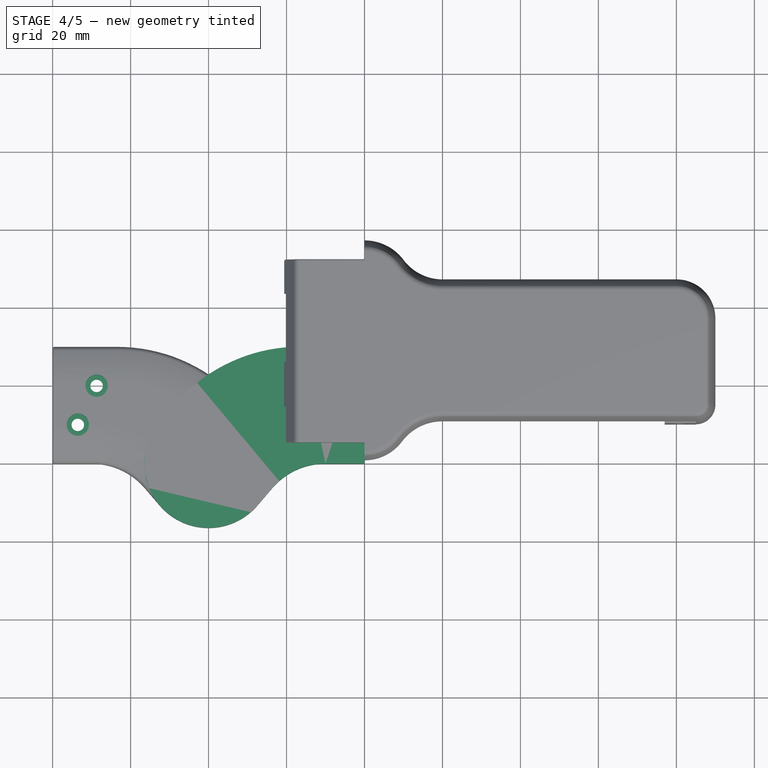
[diagram: stage 4 of 5 — top view after this stage's code; geometry added in this stage tinted green]
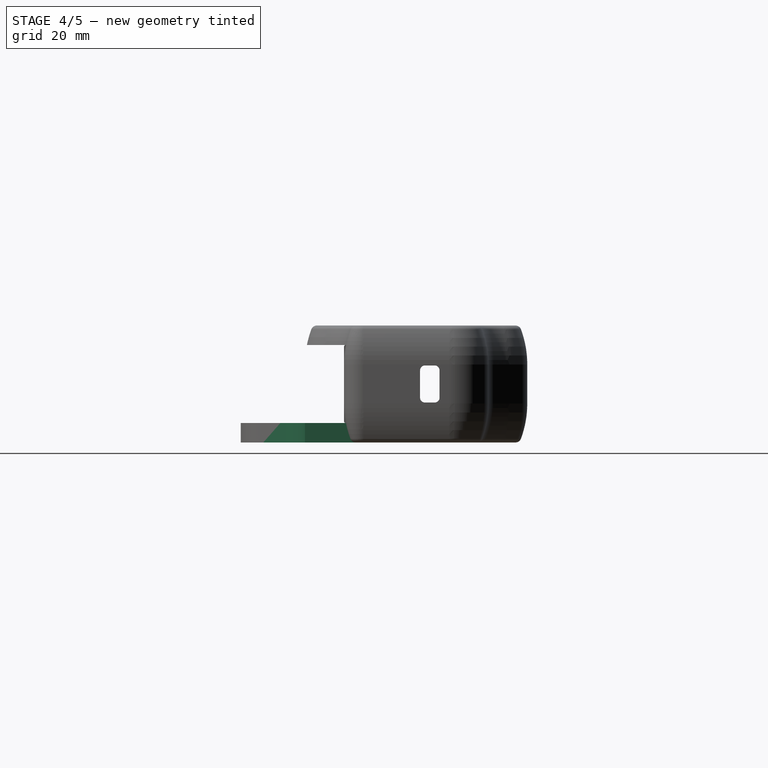
[diagram: stage 4 of 5 — right view after this stage's code; geometry added in this stage tinted green]
FEATURE [Sketcher::SketchObject] Sketch140
  MapMode = 5
  Support = -> [XY_Plane001]
  sketch-geometry (9):
    g0: ArcOfCircle CenterX=0 CenterY=0 CenterZ=0 NormalX=0 NormalY=0 NormalZ=1 AngleXU=0 Radius=16.5 StartAngle=2.43561 EndAngle=5.5772
    g1: LineSegment StartX=-12.5561 StartY=10.7049 StartZ=0 EndX=-8.82561 EndY=15.0805 EndZ=0
    g2: ArcOfCircle CenterX=23.5 CenterY=-12.4792 CenterZ=0 NormalX=0 NormalY=0 NormalZ=1 AngleXU=0 Radius=42.4792 StartAngle=1.5708 EndAngle=2.43561
    g3: LineSegment StartX=23.5 StartY=30 StartZ=0 EndX=40 EndY=30 EndZ=0
    g4: LineSegment StartX=40 StartY=30 StartZ=0 EndX=40 EndY=0 EndZ=0
    g5: LineSegment StartX=40 StartY=0 StartZ=0 EndX=30 EndY=0 EndZ=0
    g6: ArcOfCircle CenterX=30 CenterY=-18.0208 CenterZ=0 NormalX=0 NormalY=0 NormalZ=1 AngleXU=0 Radius=18.0208 StartAngle=1.5708 EndAngle=2.43561
    g7: LineSegment StartX=16.2866 StartY=-6.32927 StartZ=0 EndX=12.5561 EndY=-10.7049 EndZ=0
    g8: LineSegment [constr] StartX=-8.82561 StartY=15.0805 StartZ=0 EndX=16.2866 EndY=-6.32927 EndZ=0
  constraints (21):
    c: Coincident(g0,g-1)
    c: Tangent(g0,g1) = 1.5708
    c: Tangent(g1,g2) = 1.5708
    c: Tangent(g2,g3) = 1.5708
    c: Perpendicular(g3,g4) = 4.71239
    c: Coincident(g4,g5)
    c: PointOnObject(g5,g-1)
    c: Horizontal(g5)
    c: Tangent(g5,g6) = -1.5708
    c: Tangent(g6,g7) = -1.5708
    c: Parallel(g7,g1)
    c: Radius(g0) = 16.5
    c: Horizontal(g3)
    c: DistanceY(g4,g4) = 30
    c: Tangent(g7,g0) = 1.5708
    c: DistanceX(g0,g4) = 40
    c: DistanceX(g0,g5) = 30
    c: Coincident(g8,g1)
    c: Coincident(g8,g6)
    c: Perpendicular(g1,g8)
    c: DistanceX(g3,g3) = 16.5
FEATURE [PartDesign::Pad] Pad002  label="Baseplate001"
  Length = 5
  Length2 = 100
  Profile = -> Sketch140
  Type = 0
FEATURE [PartDesign::Fillet] Fillet006  label="Smooth Edges002"
  Base = -> SubtractivePipe002 [Edge21]
  BaseFeature = -> SubtractivePipe002
  Radius = 1.5
FEATURE [Sketcher::SketchObject] Sketch148
  MapMode = 5
  Placement = pos=(0,0,5) rot=(0,0,1;0rad)
  Support = -> [SubtractivePipe002]
  sketch-geometry (3):
    g0: Circle [constr] CenterX=0 CenterY=0 CenterZ=0 NormalX=0 NormalY=0 NormalZ=1 AngleXU=0 Radius=35
    g1: Circle CenterX=-33.541 CenterY=10 CenterZ=0 NormalX=0 NormalY=0 NormalZ=1 AngleXU=0 Radius=2.85
    g2: Circle CenterX=-28.7228 CenterY=20 CenterZ=0 NormalX=0 NormalY=0 NormalZ=1 AngleXU=0 Radius=2.85
  constraints (8):
    c: Coincident(g0,g-1)
    c: PointOnObject(g1,g0)
    c: PointOnObject(g2,g0)
    c: Radius(g0) = 35
    c: Equal(g2,g1)
    c: Radius(g1) = 2.85
    c: DistanceY(g1,g2) = 10
    c: DistanceY(g-1,g1) = 10
FEATURE [PartDesign::Pocket] Pocket047  label="Screwheads Montage001"
  BaseFeature = -> Fillet006
  Length = 3
  Length2 = 100
  Profile = -> Sketch148
  Type = 0
FEATURE [Sketcher::SketchObject] Sketch149
  MapMode = 5
  Placement = pos=(0,0,2) rot=(0,0,1;0rad)
  Support = -> [Pocket047]
  sketch-geometry (3):
    g0: Circle [constr] CenterX=0 CenterY=0 CenterZ=0 NormalX=0 NormalY=0 NormalZ=1 AngleXU=0 Radius=35
    g1: Circle CenterX=-33.541 CenterY=10 CenterZ=0 NormalX=0 NormalY=0 NormalZ=1 AngleXU=0 Radius=1.6
    g2: Circle CenterX=-28.7228 CenterY=20 CenterZ=0 NormalX=0 NormalY=0 NormalZ=1 AngleXU=0 Radius=1.6
  constraints (8):
    c: Coincident(g0,g-1)
    c: Radius(g0) = 35
    c: PointOnObject(g1,g0)
    c: PointOnObject(g2,g0)
    c: Equal(g2,g1)
    c: Radius(g2) = 1.6
    c: DistanceY(g1,g2) = 10
    c: DistanceY(g-1,g1) = 10
FEATURE [PartDesign::Pocket] Pocket048  label="Screwholes Montage001"
  BaseFeature = -> Pocket047
  Length = 3
  Length2 = 100
  Profile = -> Sketch149
  Type = 0
FEATURE [Sketcher::SketchObject] Sketch145
  MapMode = 5
  Placement = pos=(0,0,5) rot=(0,0,1;0rad)
  Support = -> [Pocket048]
  sketch-geometry (1):
    g0: Circle CenterX=0 CenterY=0 CenterZ=0 NormalX=0 NormalY=0 NormalZ=1 AngleXU=0 Radius=6.15
  constraints (2):
    c: Coincident(g0,g-1)
    c: Radius(g0) = 6.15
FEATURE [PartDesign::Pocket] Pocket046  label="Ball Bearing Flange"
  BaseFeature = -> Pocket048
  Length = 5
  Length2 = 100
  Profile = -> Sketch145
  Type = 0
FEATURE [Sketcher::SketchObject] Sketch144
  MapMode = 5
  Placement = pos=(0,0,0) rot=(1,0,0;3.14159rad)
  Support = -> [Pocket046]
  sketch-geometry (1):
    g0: Circle CenterX=0 CenterY=0 CenterZ=0 NormalX=0 NormalY=0 NormalZ=1 AngleXU=0 Radius=8.15
  constraints (2):
    c: Coincident(g0,g-1)
    c: Radius(g0) = 8.15
FEATURE [PartDesign::Pocket] Pocket049  label="Ball Bearing Pocket"
  BaseFeature = -> Pocket046
  Length = 4.5
  Length2 = 100
  Profile = -> Sketch144
  Type = 0
FEATURE [PartDesign::Fillet] Fillet007  label="Ball Bearing Pocket Bottom Fillet"
  Base = -> Pocket049 [Edge43]
  BaseFeature = -> Pocket049
  Radius = 1.8
FEATURE [PartDesign::Fillet] Fillet008  label="Smooth End Edge"
  Base = -> Fillet007 [Edge31]
  BaseFeature = -> Fillet007
  Radius = 0.4
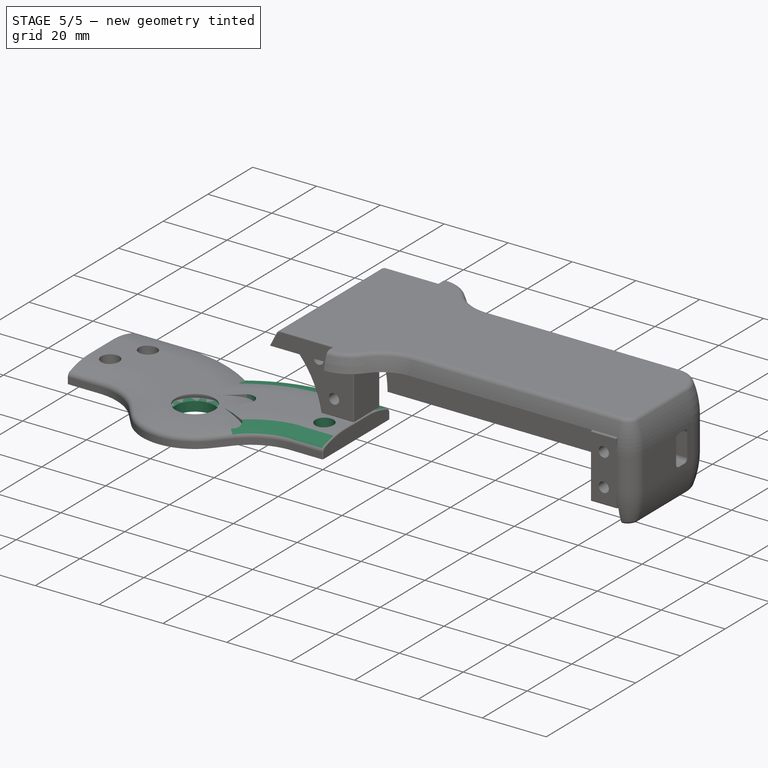
[diagram: stage 5 of 5 — iso view after this stage's code; geometry added in this stage tinted green]
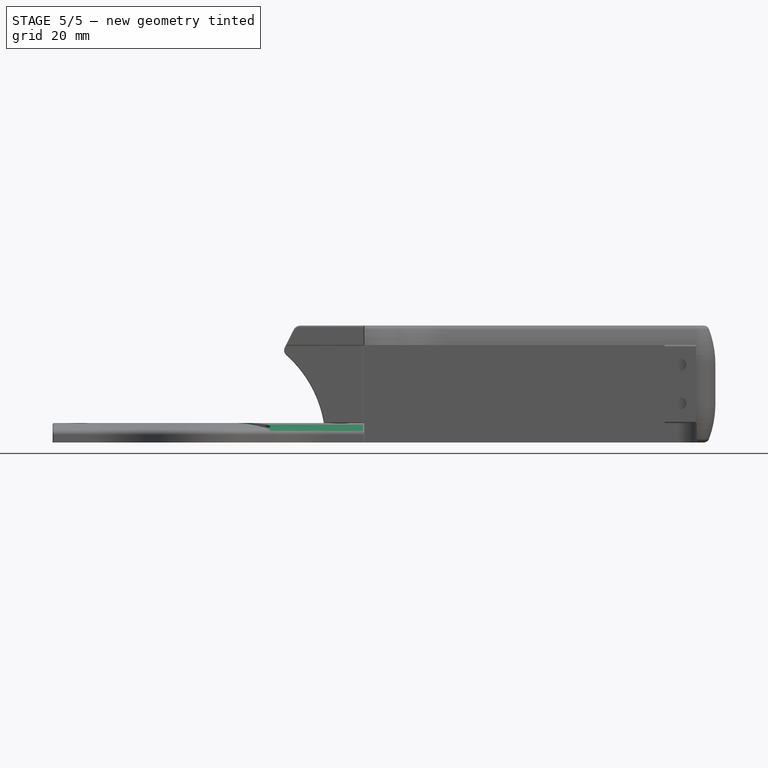
[diagram: stage 5 of 5 — front view after this stage's code; geometry added in this stage tinted green]
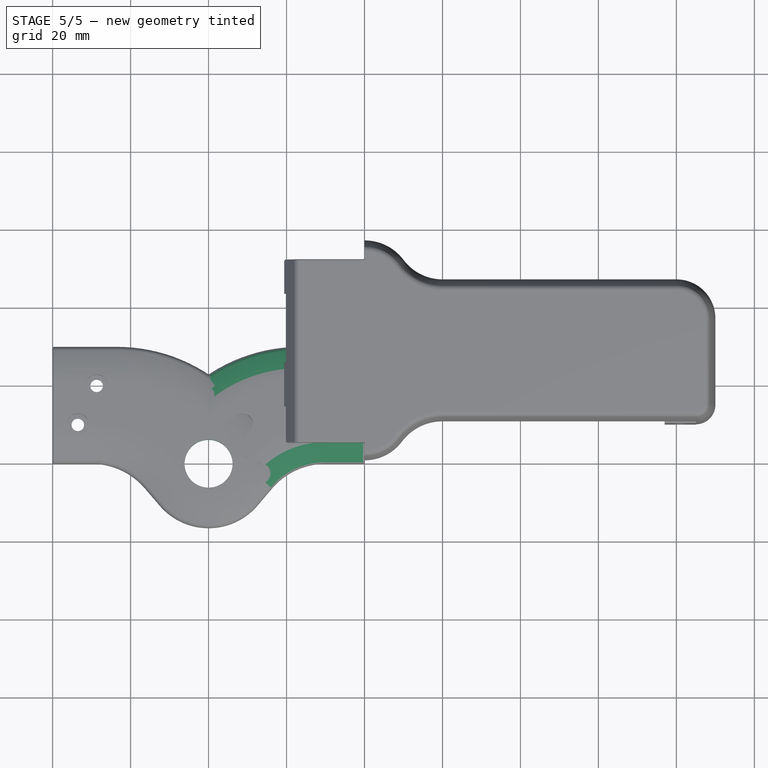
[diagram: stage 5 of 5 — top view after this stage's code; geometry added in this stage tinted green]
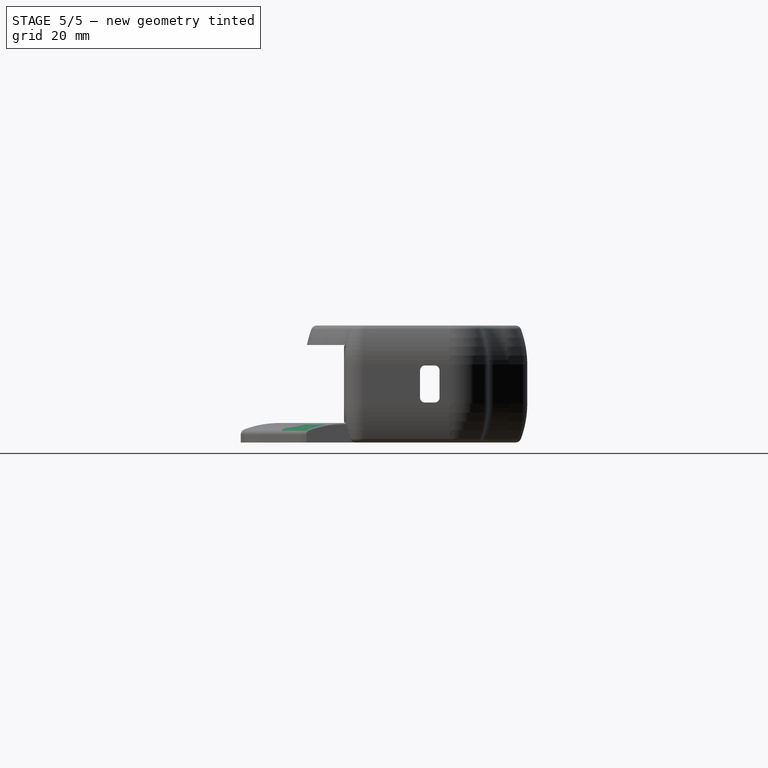
[diagram: stage 5 of 5 — right view after this stage's code; geometry added in this stage tinted green]
FEATURE [Sketcher::SketchObject] Sketch142
  MapMode = 5
  Placement = pos=(40,-9.6e-15,0) rot=(0.57735,0.57735,0.57735;2.0944rad)
  Support = -> [Pad002]
  sketch-geometry (4):
    g0: ArcOfCircle CenterX=20 CenterY=-21 CenterZ=0 NormalX=0 NormalY=0 NormalZ=1 AngleXU=0 Radius=26 StartAngle=1.17601 EndAngle=1.5708
    g1: LineSegment StartX=20 StartY=5 StartZ=0 EndX=20 EndY=6 EndZ=0
    g2: LineSegment StartX=20 StartY=6 StartZ=0 EndX=30 EndY=6 EndZ=0
    g3: LineSegment StartX=30 StartY=6 StartZ=0 EndX=30 EndY=3 EndZ=0
  constraints (13):
    c: Coincident(g1,g0)
    c: Vertical(g1)
    c: Horizontal(g2)
    c: Coincident(g3,g2)
    c: Vertical(g3)
    c: Coincident(g0,g3)
    c: Coincident(g1,g2)
    c: DistanceY(g1,g1) = 1
    c: DistanceY(g3,g3) = 3
    c: DistanceX(g2,g2) = 10
    c: DistanceY(g-1,g0) = 5
    c: DistanceX(g-1,g0) = 30
    c: Perpendicular(g0,g1)
FEATURE [PartDesign::SubtractivePipe] SubtractivePipe001  label="Smooth Surfaces"
  AuxilleryCurvelinear = true
  AuxillerySpineTangent = false
  BaseFeature = -> Pad002
  Binormal = (0,0,0)
  Mode = 0
  Profile = -> Sketch142
  Spine = -> Pad002 [Edge19,Edge22,Edge24,Edge4,Edge7,Edge10,Edge13]
  SpineTangent = false
  Transformation = 0
  Transition = 0
FEATURE [Sketcher::SketchObject] Sketch133
  MapMode = 5
  Placement = pos=(0,0,5) rot=(0,0,1;0rad)
  Support = -> [SubtractivePipe001]
  sketch-geometry (3):
    g0: Circle [constr] CenterX=0 CenterY=0 CenterZ=0 NormalX=0 NormalY=0 NormalZ=1 AngleXU=0 Radius=35
    g1: Circle CenterX=28.7228 CenterY=20 CenterZ=0 NormalX=0 NormalY=0 NormalZ=1 AngleXU=0 Radius=2.85
    g2: Circle CenterX=33.541 CenterY=10 CenterZ=0 NormalX=0 NormalY=0 NormalZ=1 AngleXU=0 Radius=2.85
  constraints (8):
    c: Coincident(g0,g-1)
    c: PointOnObject(g1,g0)
    c: PointOnObject(g2,g0)
    c: Radius(g0) = 35
    c: Equal(g2,g1)
    c: Radius(g1) = 2.85
    c: DistanceY(g2,g1) = 10
    c: DistanceY(g-1,g2) = 10
FEATURE [PartDesign::Fillet] Fillet005  label="Smooth Edges001"
  Base = -> SubtractivePipe001 [Edge21]
  BaseFeature = -> SubtractivePipe001
  Radius = 1.5
FEATURE [PartDesign::Pocket] Pocket044  label="Screwheads Montage"
  BaseFeature = -> Fillet005
  Length = 3
  Length2 = 100
  Profile = -> Sketch133
  Type = 0
FEATURE [Sketcher::SketchObject] Sketch141
  MapMode = 5
  Placement = pos=(0,0,2) rot=(0,0,1;0rad)
  Support = -> [Pocket044]
  sketch-geometry (3):
    g0: Circle [constr] CenterX=0 CenterY=0 CenterZ=0 NormalX=0 NormalY=0 NormalZ=1 AngleXU=0 Radius=35
    g1: Circle CenterX=28.7228 CenterY=20 CenterZ=0 NormalX=0 NormalY=0 NormalZ=1 AngleXU=0 Radius=1.6
    g2: Circle CenterX=33.541 CenterY=10 CenterZ=0 NormalX=0 NormalY=0 NormalZ=1 AngleXU=0 Radius=1.6
  constraints (8):
    c: Coincident(g0,g-1)
    c: Radius(g0) = 35
    c: PointOnObject(g1,g0)
    c: PointOnObject(g2,g0)
    c: Equal(g2,g1)
    c: Radius(g2) = 1.6
    c: DistanceY(g2,g1) = 10
    c: DistanceY(g-1,g2) = 10
FEATURE [PartDesign::Pocket] Pocket045  label="Screwholes Montage"
  BaseFeature = -> Pocket044
  Length = 3
  Length2 = 100
  Profile = -> Sketch141
  Type = 0
FEATURE [Sketcher::SketchObject] Sketch135
  MapMode = 5
  Placement = pos=(0,0,5) rot=(0,0,1;0rad)
  Support = -> [Fillet005]
  sketch-geometry (33):
    g0: LineSegment [constr] StartX=8.75859 StartY=10.2731 StartZ=0 EndX=-4.5175 EndY=12.7217 EndZ=0
    g1: LineSegment [constr] StartX=-4.5175 StartY=12.7217 StartZ=0 EndX=-13.2761 EndY=2.44859 EndZ=0
    g2: LineSegment [constr] StartX=-13.2761 StartY=2.44859 StartZ=0 EndX=-8.75859 EndY=-10.2731 EndZ=0
    g3: LineSegment [constr] StartX=-8.75859 StartY=-10.2731 StartZ=0 EndX=4.5175 EndY=-12.7217 EndZ=0
    g4: LineSegment [constr] StartX=4.5175 StartY=-12.7217 StartZ=0 EndX=13.2761 EndY=-2.44859 EndZ=0
    g5: LineSegment [constr] StartX=13.2761 StartY=-2.44859 StartZ=0 EndX=8.75859 EndY=10.2731 EndZ=0
    g6: Circle [constr] CenterX=0 CenterY=0 CenterZ=0 NormalX=0 NormalY=0 NormalZ=1 AngleXU=0 Radius=13.5
    g7: LineSegment [constr] StartX=7.06762 StartY=2.50972 StartZ=0 EndX=1.36033 EndY=7.3756 EndZ=0
    g8: LineSegment [constr] StartX=1.36033 StartY=7.3756 StartZ=0 EndX=-5.70729 EndY=4.86588 EndZ=0
    g9: LineSegment [constr] StartX=-5.70729 StartY=4.86588 StartZ=0 EndX=-7.06762 EndY=-2.50972 EndZ=0
    g10: LineSegment [constr] StartX=-7.06762 StartY=-2.50972 StartZ=0 EndX=-1.36033 EndY=-7.3756 EndZ=0
    g11: LineSegment [constr] StartX=-1.36033 StartY=-7.3756 StartZ=0 EndX=5.70729 EndY=-4.86588 EndZ=0
    g12: LineSegment [constr] StartX=5.70729 StartY=-4.86588 StartZ=0 EndX=7.06762 EndY=2.50972 EndZ=0
    g13: Circle [constr] CenterX=0 CenterY=0 CenterZ=0 NormalX=0 NormalY=0 NormalZ=1 AngleXU=0 Radius=7.5
    g14: ArcOfCircle CenterX=13.2761 CenterY=-2.44859 CenterZ=0 NormalX=0 NormalY=0 NormalZ=1 AngleXU=0 Radius=2.6 StartAngle=4.68815 EndAngle=7.51344
    g15: ArcOfCircle CenterX=4.5175 CenterY=-12.7217 CenterZ=0 NormalX=0 NormalY=0 NormalZ=1 AngleXU=0 Radius=2.6 StartAngle=3.64095 EndAngle=6.46625
    g16: ArcOfCircle CenterX=-8.75859 CenterY=-10.2731 CenterZ=0 NormalX=0 NormalY=0 NormalZ=1 AngleXU=0 Radius=2.6 StartAngle=2.59376 EndAngle=5.41905
    g17: ArcOfCircle CenterX=-13.2761 CenterY=2.44859 CenterZ=0 NormalX=0 NormalY=0 NormalZ=1 AngleXU=0 Radius=2.6 StartAngle=1.54656 EndAngle=4.37185
    g18: ArcOfCircle CenterX=-4.5175 CenterY=12.7217 CenterZ=0 NormalX=0 NormalY=0 NormalZ=1 AngleXU=0 Radius=2.6 StartAngle=0.499362 EndAngle=3.32465
    g19: ArcOfCircle CenterX=8.75859 CenterY=10.2731 CenterZ=0 NormalX=0 NormalY=0 NormalZ=1 AngleXU=0 Radius=2.6 StartAngle=5.73535 EndAngle=8.56064
    g20: LineSegment StartX=10.9781 StartY=8.91894 StartZ=0 EndX=7.06762 EndY=2.50972 EndZ=0
    g21: LineSegment StartX=7.06762 StartY=2.50972 StartZ=0 EndX=14.1445 EndY=0.00210095 EndZ=0
    g22: LineSegment StartX=13.2131 StartY=-5.04783 StartZ=0 EndX=5.70729 EndY=-4.86588 EndZ=0
    g23: LineSegment StartX=5.70729 StartY=-4.86588 StartZ=0 EndX=7.07405 EndY=-12.2484 EndZ=0
    g24: LineSegment StartX=2.23499 StartY=-13.9668 StartZ=0 EndX=-1.36033 EndY=-7.3756 EndZ=0
    g25: LineSegment StartX=-1.36033 StartY=-7.3756 StartZ=0 EndX=-7.07041 EndY=-12.2505 EndZ=0
    g26: LineSegment StartX=-10.9781 StartY=-8.91894 StartZ=0 EndX=-7.06762 EndY=-2.50972 EndZ=0
    g27: LineSegment StartX=-7.06762 StartY=-2.50972 StartZ=0 EndX=-14.1445 EndY=-0.00210095 EndZ=0
    g28: LineSegment StartX=-13.2131 StartY=5.04783 StartZ=0 EndX=-5.70729 EndY=4.86588 EndZ=0
    g29: LineSegment StartX=-5.70729 StartY=4.86588 StartZ=0 EndX=-7.07405 EndY=12.2484 EndZ=0
    g30: LineSegment StartX=-2.23499 StartY=13.9668 StartZ=0 EndX=1.36033 EndY=7.3756 EndZ=0
    g31: LineSegment StartX=1.36033 StartY=7.3756 StartZ=0 EndX=7.07041 EndY=12.2505 EndZ=0
    g32: LineSegment [constr] StartX=8.75859 StartY=10.2731 StartZ=0 EndX=-8.75859 EndY=-10.2731 EndZ=0
  constraints (70):
    c: Coincident(g0,g1)
    c: Coincident(g1,g2)
    c: Coincident(g2,g3)
    c: Coincident(g3,g4)
    c: Coincident(g4,g5)
    c: Coincident(g5,g0)
    c: Equal(g0, g1-g5) x5
    c: PointOnObject(g0,g6)
    c: PointOnObject(g1,g6)
    c: PointOnObject(g2,g6)
    c: PointOnObject(g3,g6)
    c: PointOnObject(g4,g6)
    c: PointOnObject(g5,g6)
    c: Coincident(g6,g-1)
    c: Radius(g6) = 13.5
    c: Coincident(g7,g8)
    c: Coincident(g8,g9)
    c: Coincident(g9,g10)
    c: Coincident(g10,g11)
    c: Coincident(g11,g12)
    c: Coincident(g12,g7)
    c: Equal(g7, g8-g12) x5
    c: PointOnObject(g7,g13)
    c: PointOnObject(g8,g13)
    c: PointOnObject(g9,g13)
    c: PointOnObject(g10,g13)
    c: PointOnObject(g11,g13)
    c: PointOnObject(g12,g13)
    c: Coincident(g13,g-1)
    c: Radius(g13) = 7.5
    c: Coincident(g14,g4)
    c: Coincident(g15,g3)
    c: Coincident(g16,g2)
    c: Coincident(g17,g1)
    c: Coincident(g18,g0)
    c: Coincident(g19,g0)
    c: Coincident(g20,g7)
    c: Coincident(g21,g20)
    c: Coincident(g22,g11)
    c: Coincident(g23,g22)
    c: Coincident(g24,g10)
    c: Coincident(g25,g24)
    c: Coincident(g26,g9)
    c: Coincident(g28,g8)
    c: Coincident(g29,g28)
    c: Coincident(g30,g7)
    c: Coincident(g31,g30)
    c: Tangent(g22,g14) = 1.5708
    c: Tangent(g23,g15) = 1.5708
    c: Tangent(g24,g15) = 1.5708
    c: Tangent(g26,g16) = 1.5708
    c: Tangent(g21,g14) = 1.5708
    c: Tangent(g16,g25) = 1.5708
    c: Tangent(g29,g18) = 1.5708
    c: Tangent(g30,g18) = 1.5708
    c: Tangent(g31,g19) = 1.5708
    c: Tangent(g20,g19) = 1.5708
    c: Tangent(g27,g17) = 1.5708
    c: Tangent(g17,g28) = 1.5708
    c: Coincident(g27,g26)
    c: Equal(g14,g15)
    c: Equal(g15,g16)
    c: Equal(g16,g17)
    c: Equal(g17,g18)
    c: Equal(g18,g19)
    c: Radius(g14) = 2.6
    c: Coincident(g32,g19)
    c: Coincident(g32,g16)
    c: Perpendicular(g32,g7)
    c: Angle(g32,g-2) = 0.705986
FEATURE [PartDesign::Pocket] Pocket002  label="Servohorn"
  BaseFeature = -> Pocket045
  Length = 2
  Length2 = 100
  Profile = -> Sketch135
  Type = 0
FEATURE [PartDesign::Fillet] Fillet004  label="Smooth Servhohorn Edges"
  Base = -> Pocket002 [Edge118,Edge108,Edge123,Edge112,Edge111,Edge109]
  BaseFeature = -> Pocket002
  Radius = 1
FEATURE [Sketcher::SketchObject] Sketch136
  MapMode = 5
  Placement = pos=(0,0,3) rot=(0,0,1;0rad)
  Support = -> [Fillet004]
  sketch-geometry (14):
    g0: LineSegment [constr] StartX=6.81223 StartY=7.99021 StartZ=0 EndX=-3.51361 EndY=9.89467 EndZ=0
    g1: LineSegment [constr] StartX=-3.51361 StartY=9.89467 StartZ=0 EndX=-10.3258 EndY=1.90446 EndZ=0
    g2: LineSegment [constr] StartX=-10.3258 StartY=1.90446 StartZ=0 EndX=-6.81223 EndY=-7.99021 EndZ=0
    g3: LineSegment [constr] StartX=-6.81223 StartY=-7.99021 StartZ=0 EndX=3.51361 EndY=-9.89467 EndZ=0
    g4: LineSegment [constr] StartX=3.51361 StartY=-9.89467 StartZ=0 EndX=10.3258 EndY=-1.90446 EndZ=0
    g5: LineSegment [constr] StartX=10.3258 StartY=-1.90446 StartZ=0 EndX=6.81223 EndY=7.99021 EndZ=0
    g6: Circle [constr] CenterX=0 CenterY=0 CenterZ=0 NormalX=0 NormalY=0 NormalZ=1 AngleXU=0 Radius=10.5
    g7: LineSegment [constr] StartX=6.81223 StartY=7.99021 StartZ=0 EndX=-6.81223 EndY=-7.99021 EndZ=0
    g8: Circle CenterX=6.81223 CenterY=7.99021 CenterZ=0 NormalX=0 NormalY=0 NormalZ=1 AngleXU=0 Radius=0.95
    g9: Circle CenterX=10.3258 CenterY=-1.90446 CenterZ=0 NormalX=0 NormalY=0 NormalZ=1 AngleXU=0 Radius=0.95
    g10: Circle CenterX=3.51361 CenterY=-9.89467 CenterZ=0 NormalX=0 NormalY=0 NormalZ=1 AngleXU=0 Radius=0.95
    g11: Circle CenterX=-6.81223 CenterY=-7.99021 CenterZ=0 NormalX=0 NormalY=0 NormalZ=1 AngleXU=0 Radius=0.95
    g12: Circle CenterX=-10.3258 CenterY=1.90446 CenterZ=0 NormalX=0 NormalY=0 NormalZ=1 AngleXU=0 Radius=0.95
    g13: Circle CenterX=-3.51361 CenterY=9.89467 CenterZ=0 NormalX=0 NormalY=0 NormalZ=1 AngleXU=0 Radius=0.95
  constraints (30):
    c: Coincident(g0,g1)
    c: Coincident(g1,g2)
    c: Coincident(g2,g3)
    c: Coincident(g3,g4)
    c: Coincident(g4,g5)
    c: Coincident(g5,g0)
    c: Equal(g0, g1-g5) x5
    c: PointOnObject(g0,g6)
    c: PointOnObject(g1,g6)
    c: PointOnObject(g2,g6)
    c: PointOnObject(g3,g6)
    c: PointOnObject(g4,g6)
    c: PointOnObject(g5,g6)
    c: Coincident(g6,g-1)
    c: Coincident(g7,g0)
    c: Coincident(g7,g2)
    c: Angle(g7,g-2) = 0.705986
    c: Radius(g6) = 10.5
    c: Coincident(g8,g0)
    c: Coincident(g9,g4)
    c: Coincident(g10,g3)
    c: Coincident(g11,g2)
    c: Coincident(g12,g1)
    c: Coincident(g13,g0)
    c: Equal(g13,g12)
    c: Equal(g12,g11)
    c: Equal(g11,g10)
    c: Equal(g10,g9)
    c: Equal(g9,g8)
    c: Radius(g8) = 0.95
FEATURE [PartDesign::Pocket] Pocket003  label="Servohorn Mounting Holes"
  BaseFeature = -> Fillet004
  Length = 3
  Length2 = 100
  Profile = -> Sketch136
  Type = 0
FEATURE [Sketcher::SketchObject] Sketch143
  MapMode = 5
  Placement = pos=(0,0,3) rot=(0,0,1;0rad)
  Support = -> [Pocket003]
  sketch-geometry (1):
    g0: Circle CenterX=0 CenterY=0 CenterZ=0 NormalX=0 NormalY=0 NormalZ=1 AngleXU=0 Radius=6.15
  constraints (2):
    c: Coincident(g0,g-1)
    c: Radius(g0) = 6.15
FEATURE [PartDesign::Pocket] Pocket004  label="Servohorn Axis"
  BaseFeature = -> Pocket003
  Length = 3
  Length2 = 100
  Profile = -> Sketch143
  Type = 0
FEATURE [PartDesign::Fillet] Fillet003  label="Smooth End Egde"
  Base = -> Pocket004 [Edge171]
  BaseFeature = -> Pocket004
  Radius = 0.4
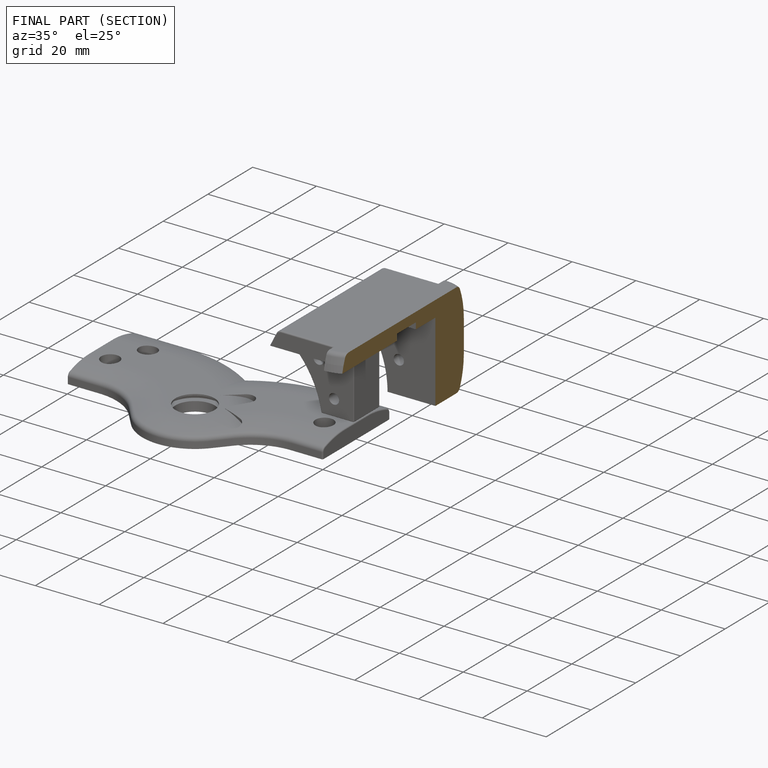
[diagram: finished part — half-section view (interior)]
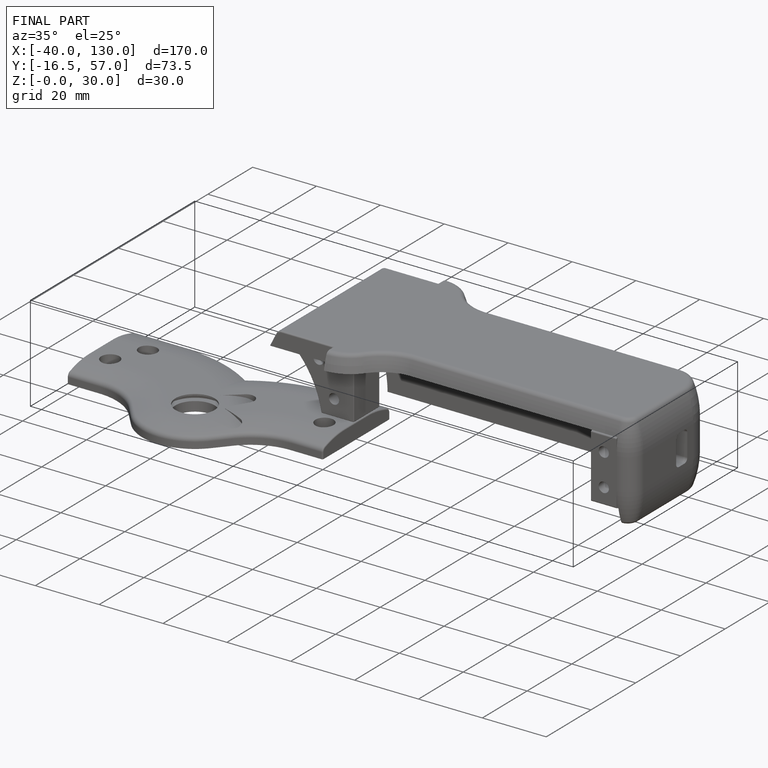
[diagram: finished part — iso view with bounding-box wireframe]
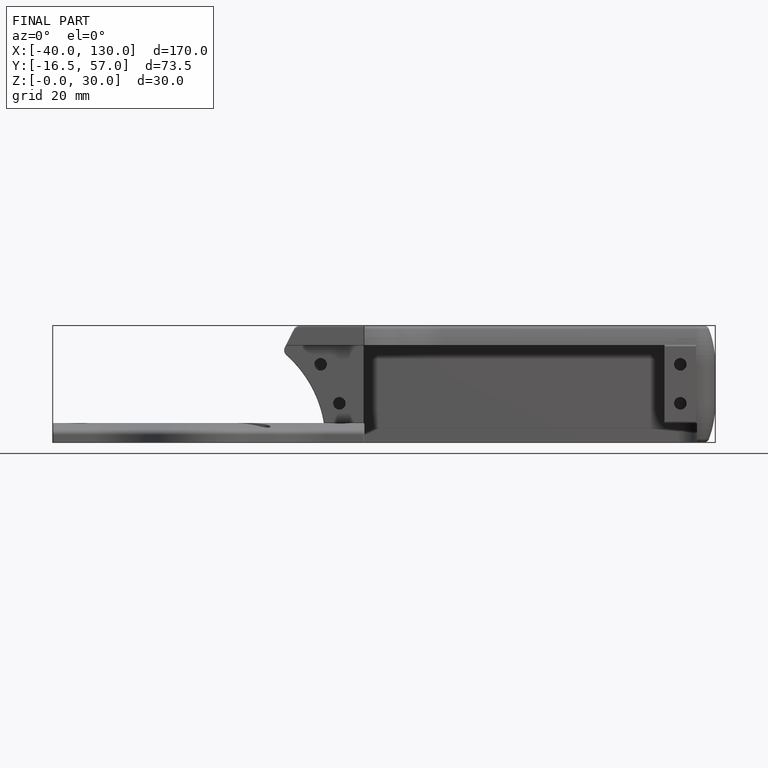
[diagram: finished part — front view with bounding-box wireframe]
